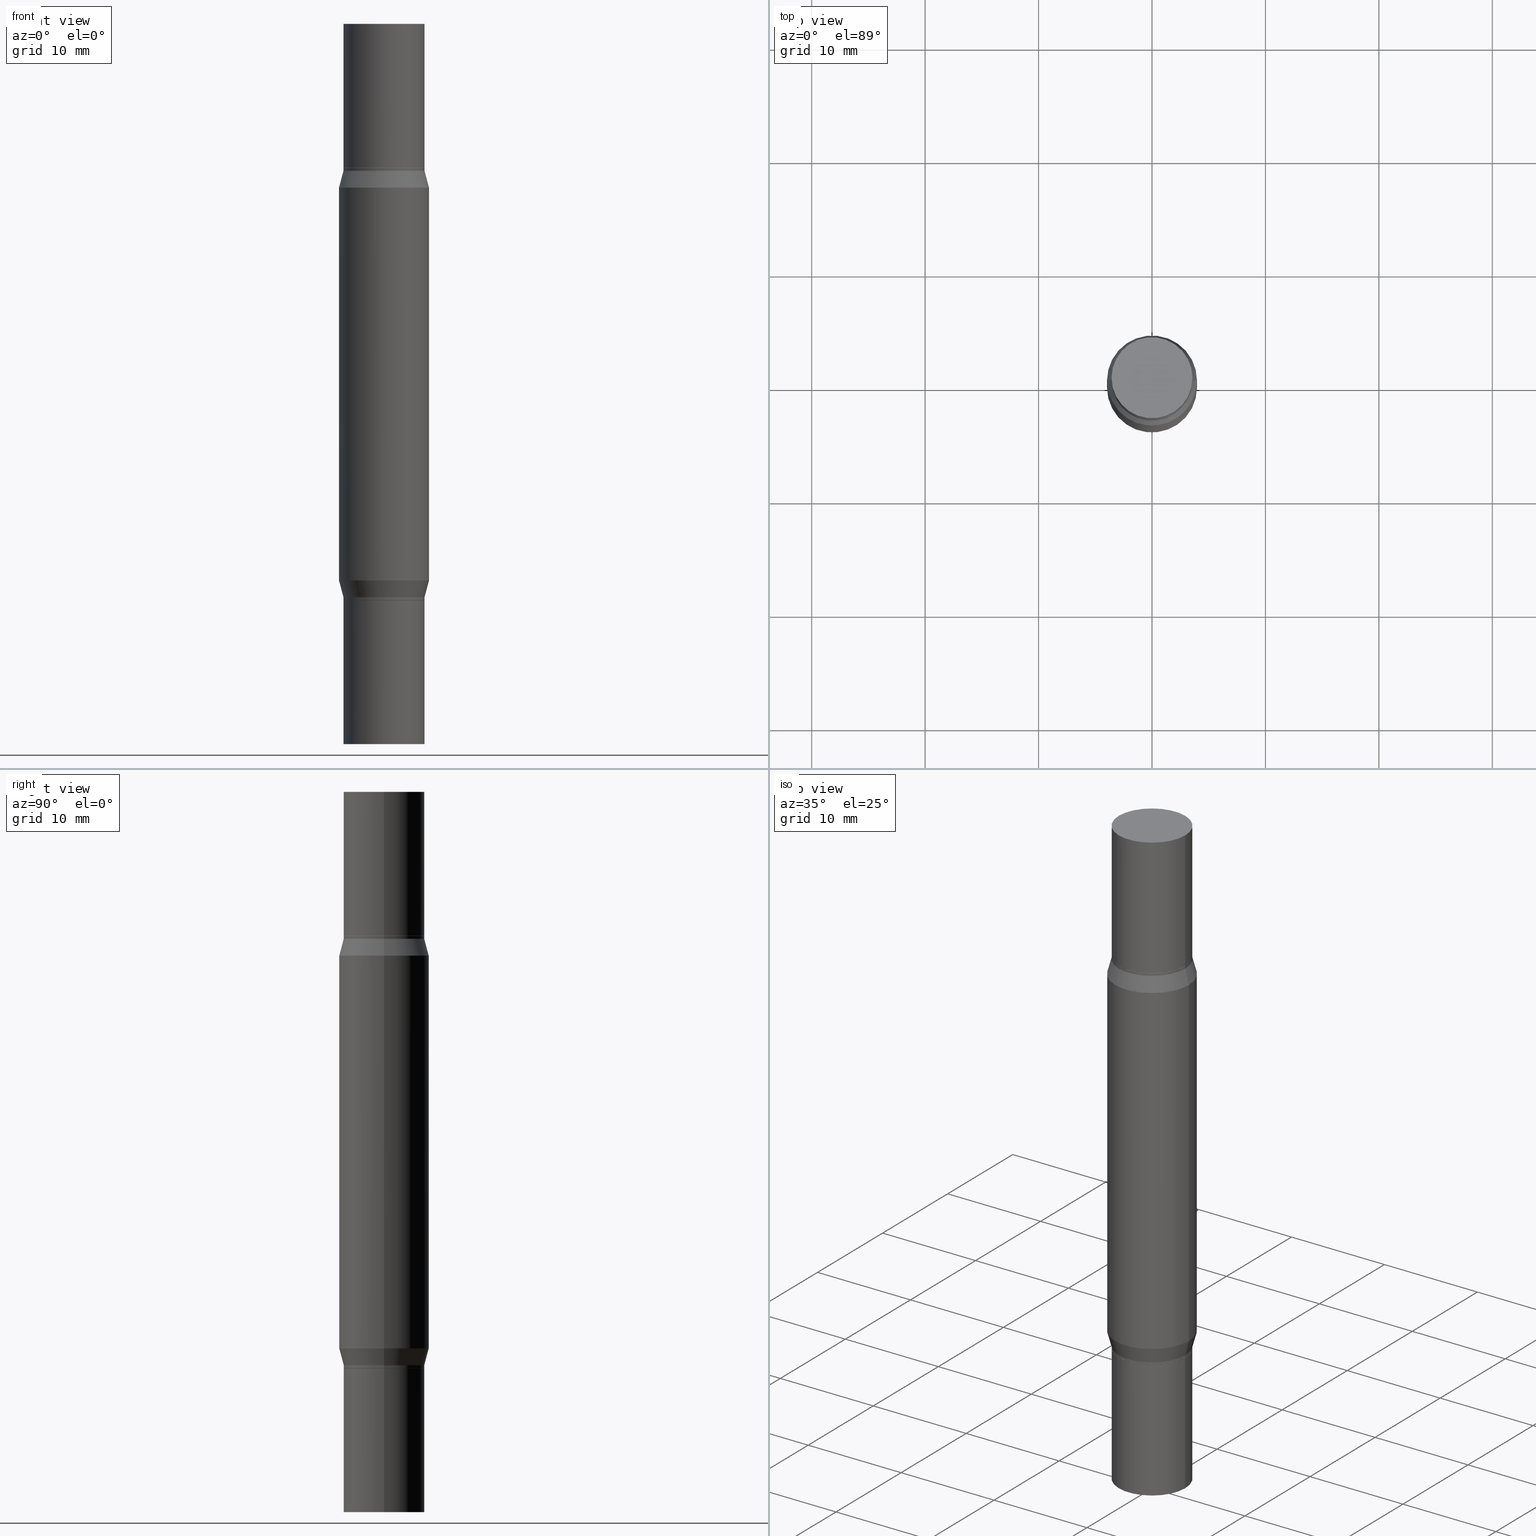
[diagram: canonical four-view strip — front | top / right | iso, engineering-drawing reading convention]
A machine part, canonical four-view strip (front | top / right | iso — engineering-drawing reading convention). The complete STEP part file that produces these views, byte-faithful:
ISO-10303-21;
HEADER;
FILE_DESCRIPTION (( 'STEP AP203' ),
    '1' );
FILE_NAME ('31431.STEP',
    '2024-03-04T16:00:09',
    ( '' ),
    ( '' ),
    'SwSTEP 2.0',
    'SolidWorks 2023',
    '' );
FILE_SCHEMA (( 'CONFIG_CONTROL_DESIGN' ));
ENDSEC;

DATA;
#1 = CIRCLE ( 'NONE', #220, 0.1401000000000000023 ) ;
#2 = LOCAL_TIME ( 11, 0, 9.000000000000000000, #543 ) ;
#3 = ORIENTED_EDGE ( 'NONE', *, *, #282, .T. ) ;
#4 = APPROVAL_STATUS ( 'not_yet_approved' ) ;
#5 = PERSON_AND_ORGANIZATION ( #474, #245 ) ;
#6 = EDGE_CURVE ( 'NONE', #268, #35, #712, .T. ) ;
#7 = VERTEX_POINT ( 'NONE', #321 ) ;
#8 = PERSON_AND_ORGANIZATION_ROLE ( 'design_owner' ) ;
#9 = ORIENTED_EDGE ( 'NONE', *, *, #209, .F. ) ;
#10 = FACE_OUTER_BOUND ( 'NONE', #957, .T. ) ;
#11 = CC_DESIGN_PERSON_AND_ORGANIZATION_ASSIGNMENT ( #93, #8, ( #86 ) ) ;
#12 = AXIS2_PLACEMENT_3D ( 'NONE', #889, #280, #752 ) ;
#13 = CARTESIAN_POINT ( 'NONE',  ( 4.723651417821850369E-29, -1.984360349766479521E-15, -0.5684065951384525972 ) ) ;
#14 = DIRECTION ( 'NONE',  ( 1.000000000000000000, -6.982962677686265133E-15, 0.000000000000000000 ) ) ;
#15 = DIRECTION ( 'NONE',  ( -2.445468806185136597E-29, -3.491805094961124077E-15, -1.000000000000000000 ) ) ;
#16 = CARTESIAN_POINT ( 'NONE',  ( 0.000000000000000000, -8.729108042255335103E-15, -2.499999999999999556 ) ) ;
#17 = EDGE_CURVE ( 'NONE', #342, #190, #250, .T. ) ;
#18 = DIRECTION ( 'NONE',  ( 1.000000000000000000, -6.982962677686270655E-15, 0.000000000000000000 ) ) ;
#19 = DIRECTION ( 'NONE',  ( 1.000000000000000000, -6.982962677686263555E-15, 0.000000000000000000 ) ) ;
#20 = AXIS2_PLACEMENT_3D ( 'NONE', #774, #110, #921 ) ;
#21 = CIRCLE ( 'NONE', #724, 0.1401000000000000023 ) ;
#22 = CONICAL_SURFACE ( 'NONE', #40, 0.1401000000000000023, 0.7853981633974653764 ) ;
#23 = DIRECTION ( 'NONE',  ( -1.000000000000000000, 6.982962677686265922E-15, -4.876176775795935793E-29 ) ) ;
#24 = PLANE ( 'NONE',  #631 ) ;
#25 = FACE_OUTER_BOUND ( 'NONE', #912, .T. ) ;
#26 = VERTEX_POINT ( 'NONE', #399 ) ;
#27 = FACE_OUTER_BOUND ( 'NONE', #348, .T. ) ;
#28 = ORIENTED_EDGE ( 'NONE', *, *, #6, .T. ) ;
#29 = ADVANCED_FACE ( 'NONE', ( #172 ), #94, .T. ) ;
#30 = DIRECTION ( 'NONE',  ( 1.000000000000000000, -6.982962677686266711E-15, 0.000000000000000000 ) ) ;
#31 = ORIENTED_EDGE ( 'NONE', *, *, #119, .T. ) ;
#32 = DIRECTION ( 'NONE',  ( -2.445468806185136597E-29, -3.491805094961124077E-15, -1.000000000000000000 ) ) ;
#33 = DIRECTION ( 'NONE',  ( 1.000000000000000000, -6.982962677686266711E-15, 0.000000000000000000 ) ) ;
#34 = ORIENTED_EDGE ( 'NONE', *, *, #372, .T. ) ;
#35 = VERTEX_POINT ( 'NONE', #98 ) ;
#36 = VECTOR ( 'NONE', #927, 39.37007874015748143 ) ;
#37 = CARTESIAN_POINT ( 'NONE',  ( 0.1401000000000000023, -2.723810923476931864E-15, -0.4999999999999993339 ) ) ;
#38 = LINE ( 'NONE', #658, #894 ) ;
#39 = CIRCLE ( 'NONE', #12, 0.1405999999999999195 ) ;
#40 = AXIS2_PLACEMENT_3D ( 'NONE', #706, #784, #557 ) ;
#41 = CARTESIAN_POINT ( 'NONE',  ( -0.1405999999999998917, -7.764522023768658166E-15, -2.499999999999999556 ) ) ;
#42 = ORIENTED_EDGE ( 'NONE', *, *, #333, .F. ) ;
#43 = ADVANCED_FACE ( 'NONE', ( #391 ), #479, .T. ) ;
#44 = ORIENTED_EDGE ( 'NONE', *, *, #223, .F. ) ;
#45 = CARTESIAN_POINT ( 'NONE',  ( 4.890937612370273754E-29, -1.745497852333085568E-15, -0.4999999999999993339 ) ) ;
#46 = EDGE_LOOP ( 'NONE', ( #687, #199, #362, #893 ) ) ;
#47 = EDGE_CURVE ( 'NONE', #190, #787, #979, .T. ) ;
#48 = EDGE_LOOP ( 'NONE', ( #530, #963, #205, #263 ) ) ;
#49 = CARTESIAN_POINT ( 'NONE',  ( 4.890937612370273754E-29, -6.982962677686291954E-15, -2.000000000000000444 ) ) ;
#50 = DIRECTION ( 'NONE',  ( -2.445468806185136877E-29, 3.491481338843145188E-15, 1.000000000000000000 ) ) ;
#51 = DIRECTION ( 'NONE',  ( 1.000000000000000000, -6.982962677686269077E-15, 0.000000000000000000 ) ) ;
#52 = ORIENTED_EDGE ( 'NONE', *, *, #127, .T. ) ;
#53 = ORIENTED_EDGE ( 'NONE', *, *, #951, .T. ) ;
#54 = DIRECTION ( 'NONE',  ( 1.000000000000000000, -6.982962677686266711E-15, 0.000000000000000000 ) ) ;
#55 = DIRECTION ( 'NONE',  ( 2.445468806185136597E-29, 3.491805094961124077E-15, 1.000000000000000000 ) ) ;
#56 = CIRCLE ( 'NONE', #754, 0.1405999999999998917 ) ;
#57 = ADVANCED_FACE ( 'NONE', ( #707 ), #701, .T. ) ;
#58 = AXIS2_PLACEMENT_3D ( 'NONE', #825, #453, #700 ) ;
#59 = DIRECTION ( 'NONE',  ( 2.445468806185136597E-29, 3.491805094961124077E-15, 1.000000000000000000 ) ) ;
#60 = AXIS2_PLACEMENT_3D ( 'NONE', #486, #331, #254 ) ;
#61 = APPROVAL_DATE_TIME ( #528, #440 ) ;
#62 = FACE_OUTER_BOUND ( 'NONE', #714, .T. ) ;
#63 = EDGE_CURVE ( 'NONE', #607, #732, #274, .T. ) ;
#64 = FACE_OUTER_BOUND ( 'NONE', #840, .T. ) ;
#65 = ORIENTED_EDGE ( 'NONE', *, *, #339, .F. ) ;
#66 = DIRECTION ( 'NONE',  ( -2.445468806185136877E-29, -3.491805094961123683E-15, -1.000000000000000000 ) ) ;
#67 = DIRECTION ( 'NONE',  ( -2.445468806185136597E-29, -3.491805094961124077E-15, -1.000000000000000000 ) ) ;
#68 = ORIENTED_EDGE ( 'NONE', *, *, #284, .T. ) ;
#69 = CALENDAR_DATE ( 2024, 4, 3 ) ;
#70 = APPROVAL_STATUS ( 'not_yet_approved' ) ;
#71 = CYLINDRICAL_SURFACE ( 'NONE', #141, 0.1406000000000000028 ) ;
#72 = VERTEX_POINT ( 'NONE', #629 ) ;
#73 = CIRCLE ( 'NONE', #198, 0.1401000000000000023 ) ;
#74 = VECTOR ( 'NONE', #405, 39.37007874015748143 ) ;
#75 = AXIS2_PLACEMENT_3D ( 'NONE', #515, #291, #286 ) ;
#76 = LOCAL_TIME ( 11, 0, 9.000000000000000000, #235 ) ;
#77 = EDGE_CURVE ( 'NONE', #473, #169, #647, .T. ) ;
#78 = MECHANICAL_CONTEXT ( 'NONE', #234, 'mechanical' ) ;
#79 = ADVANCED_FACE ( 'NONE', ( #633 ), #549, .T. ) ;
#80 = EDGE_LOOP ( 'NONE', ( #675, #485, #934, #150 ) ) ;
#81 = PLANE ( 'NONE',  #696 ) ;
#82 = ADVANCED_FACE ( 'NONE', ( #642 ), #24, .F. ) ;
#83 = DIRECTION ( 'NONE',  ( 1.000000000000000000, 0.000000000000000000, 0.000000000000000000 ) ) ;
#84 = ORIENTED_EDGE ( 'NONE', *, *, #312, .T. ) ;
#85 = FACE_OUTER_BOUND ( 'NONE', #890, .T. ) ;
#86 = PRODUCT ( '31431', '31431', '', ( #78 ) ) ;
#87 =( LENGTH_UNIT ( ) NAMED_UNIT ( * ) SI_UNIT ( $, .METRE. ) );
#88 = ORIENTED_EDGE ( 'NONE', *, *, #938, .F. ) ;
#89 = CARTESIAN_POINT ( 'NONE',  ( 0.1562500000000000000, -9.820195960643813487E-15, -2.499999999999999556 ) ) ;
#90 = AXIS2_PLACEMENT_3D ( 'NONE', #16, #779, #18 ) ;
#91 = CONICAL_SURFACE ( 'NONE', #708, 0.1405999999999998917, 0.2617993877991502960 ) ;
#92 =( GEOMETRIC_REPRESENTATION_CONTEXT ( 3 ) GLOBAL_UNCERTAINTY_ASSIGNED_CONTEXT ( ( #575 ) ) GLOBAL_UNIT_ASSIGNED_CONTEXT ( ( #608, #462, #471 ) ) REPRESENTATION_CONTEXT ( 'NONE', 'WORKASPACE' ) );
#93 = PERSON_AND_ORGANIZATION ( #474, #245 ) ;
#94 = CYLINDRICAL_SURFACE ( 'NONE', #922, 0.1562500000000000000 ) ;
#95 = ADVANCED_FACE ( 'NONE', ( #932 ), #411, .T. ) ;
#96 = LINE ( 'NONE', #397, #744 ) ;
#97 = CARTESIAN_POINT ( 'NONE',  ( 4.889714877967180953E-29, -6.981216937016870451E-15, -1.999500000000000277 ) ) ;
#98 = CARTESIAN_POINT ( 'NONE',  ( 0.1562500000000000000, -3.075448268154960667E-15, -0.5684065951384525972 ) ) ;
#99 = CARTESIAN_POINT ( 'NONE',  ( 4.890937612370273754E-29, -1.745497852333085568E-15, -0.4999999999999993339 ) ) ;
#100 = PERSON_AND_ORGANIZATION ( #474, #245 ) ;
#101 = EDGE_CURVE ( 'NONE', #111, #259, #533, .T. ) ;
#102 = CARTESIAN_POINT ( 'NONE',  ( 4.889714877967180953E-29, -1.747243754880567132E-15, -0.5004999999999991678 ) ) ;
#103 = CARTESIAN_POINT ( 'NONE',  ( 4.890937612370273754E-29, -1.745497852333085568E-15, -0.4999999999999993339 ) ) ;
#104 = DIRECTION ( 'NONE',  ( 1.000000000000000000, -6.982962677686266711E-15, 0.000000000000000000 ) ) ;
#105 = CIRCLE ( 'NONE', #228, 0.1562500000000000000 ) ;
#106 = CIRCLE ( 'NONE', #180, 0.1405999999999999195 ) ;
#107 = CIRCLE ( 'NONE', #75, 0.1406000000000000028 ) ;
#108 = LOCAL_TIME ( 11, 0, 9.000000000000000000, #539 ) ;
#109 = CARTESIAN_POINT ( 'NONE',  ( 4.890937612370273754E-29, -1.745497852333085568E-15, -0.4999999999999993339 ) ) ;
#110 = DIRECTION ( 'NONE',  ( -2.445468806185136597E-29, 3.491481338843145583E-15, 1.000000000000000000 ) ) ;
#111 = VERTEX_POINT ( 'NONE', #202 ) ;
#112 = CARTESIAN_POINT ( 'NONE',  ( 4.866482924308422209E-29, -6.948047864297860305E-15, -1.989999999999999991 ) ) ;
#113 = DIRECTION ( 'NONE',  ( -2.445468806185136597E-29, -3.491805094961124077E-15, -1.000000000000000000 ) ) ;
#114 = CARTESIAN_POINT ( 'NONE',  ( 6.113672015462842613E-29, 4.046951474745467748E-19, 5.463695987328526437E-16 ) ) ;
#115 = DIRECTION ( 'NONE',  ( -0.2588190451025215721, -1.597197180879712551E-15, -0.9659258262890679791 ) ) ;
#116 = DIRECTION ( 'NONE',  ( -2.445468806185136877E-29, -3.491805094961123683E-15, -1.000000000000000000 ) ) ;
#117 = LINE ( 'NONE', #41, #634 ) ;
#118 = ORIENTED_EDGE ( 'NONE', *, *, #562, .T. ) ;
#119 = EDGE_CURVE ( 'NONE', #120, #644, #857, .T. ) ;
#120 = VERTEX_POINT ( 'NONE', #435 ) ;
#121 = AXIS2_PLACEMENT_3D ( 'NONE', #416, #734, #947 ) ;
#122 = DIRECTION ( 'NONE',  ( 1.000000000000000000, -6.982962677686263555E-15, 0.000000000000000000 ) ) ;
#123 = CARTESIAN_POINT ( 'NONE',  ( 4.723651417821850369E-29, -6.744122327306583531E-15, -1.931593404861546848 ) ) ;
#124 = AXIS2_PLACEMENT_3D ( 'NONE', #854, #567, #252 ) ;
#125 = CARTESIAN_POINT ( 'NONE',  ( 4.890937612370273754E-29, -1.745497852333085568E-15, -0.4999999999999993339 ) ) ;
#126 = ORIENTED_EDGE ( 'NONE', *, *, #531, .T. ) ;
#127 = EDGE_CURVE ( 'NONE', #473, #607, #278, .T. ) ;
#128 = ORIENTED_EDGE ( 'NONE', *, *, #562, .F. ) ;
#129 = CYLINDRICAL_SURFACE ( 'NONE', #619, 0.1405999999999998917 ) ;
#130 = DIRECTION ( 'NONE',  ( 1.000000000000000000, -6.982962677686266711E-15, 0.000000000000000000 ) ) ;
#131 = CARTESIAN_POINT ( 'NONE',  ( 0.000000000000000000, -8.729108042255335103E-15, -2.499999999999999556 ) ) ;
#132 = ORIENTED_EDGE ( 'NONE', *, *, #899, .T. ) ;
#133 = ORIENTED_EDGE ( 'NONE', *, *, #460, .F. ) ;
#134 = DIRECTION ( 'NONE',  ( 2.445468806185136597E-29, 3.491805094961124077E-15, 1.000000000000000000 ) ) ;
#135 = CARTESIAN_POINT ( 'NONE',  ( 4.866482924308422209E-29, -6.948047864297860305E-15, -1.989999999999999991 ) ) ;
#136 = DIRECTION ( 'NONE',  ( 2.445468806185136597E-29, 3.491805094961124077E-15, 1.000000000000000000 ) ) ;
#137 = ORIENTED_EDGE ( 'NONE', *, *, #211, .F. ) ;
#138 = EDGE_CURVE ( 'NONE', #576, #381, #885, .T. ) ;
#139 = DIRECTION ( 'NONE',  ( 1.000000000000000000, -6.982962677686266711E-15, 4.876176775795935793E-29 ) ) ;
#140 = AXIS2_PLACEMENT_3D ( 'NONE', #421, #790, #646 ) ;
#141 = AXIS2_PLACEMENT_3D ( 'NONE', #131, #735, #441 ) ;
#142 = CYLINDRICAL_SURFACE ( 'NONE', #313, 0.1562500000000000000 ) ;
#143 = ORIENTED_EDGE ( 'NONE', *, *, #127, .F. ) ;
#144 = AXIS2_PLACEMENT_3D ( 'NONE', #952, #270, #884 ) ;
#145 = DIRECTION ( 'NONE',  ( 2.445468806185136597E-29, 3.491805094961124077E-15, 1.000000000000000000 ) ) ;
#146 = LINE ( 'NONE', #977, #879 ) ;
#147 = EDGE_LOOP ( 'NONE', ( #969, #349, #881, #761 ) ) ;
#148 = SHAPE_DEFINITION_REPRESENTATION ( #839, #875 ) ;
#149 = DIRECTION ( 'NONE',  ( 1.000000000000000000, -6.982962677686265922E-15, 2.260776888683160832E-33 ) ) ;
#150 = ORIENTED_EDGE ( 'NONE', *, *, #248, .F. ) ;
#151 = ADVANCED_FACE ( 'NONE', ( #502 ), #207, .F. ) ;
#152 = EDGE_CURVE ( 'NONE', #268, #7, #56, .T. ) ;
#153 = ORIENTED_EDGE ( 'NONE', *, *, #851, .F. ) ;
#154 = AXIS2_PLACEMENT_3D ( 'NONE', #866, #716, #130 ) ;
#155 = CIRCLE ( 'NONE', #551, 0.1405999999999998917 ) ;
#156 = ADVANCED_FACE ( 'NONE', ( #785 ), #322, .T. ) ;
#157 = VECTOR ( 'NONE', #206, 39.37007874015748143 ) ;
#158 = ORIENTED_EDGE ( 'NONE', *, *, #693, .T. ) ;
#159 = DIRECTION ( 'NONE',  ( -2.445468806185136597E-29, 3.491481338843145583E-15, 1.000000000000000000 ) ) ;
#160 = ADVANCED_FACE ( 'NONE', ( #795 ), #767, .T. ) ;
#161 = EDGE_LOOP ( 'NONE', ( #555, #197, #536, #222 ) ) ;
#162 = CARTESIAN_POINT ( 'NONE',  ( 0.1562500000000000000, -7.835210245695063494E-15, -1.931593404861546848 ) ) ;
#163 = EDGE_CURVE ( 'NONE', #821, #259, #496, .T. ) ;
#164 = VERTEX_POINT ( 'NONE', #859 ) ;
#165 = CC_DESIGN_PERSON_AND_ORGANIZATION_ASSIGNMENT ( #456, #623, ( #522 ) ) ;
#166 = AXIS2_PLACEMENT_3D ( 'NONE', #886, #136, #51 ) ;
#167 = PERSON_AND_ORGANIZATION ( #474, #245 ) ;
#168 = DIRECTION ( 'NONE',  ( 1.000000000000000000, -6.982962677686266711E-15, 0.000000000000000000 ) ) ;
#169 = VERTEX_POINT ( 'NONE', #357 ) ;
#170 = DIRECTION ( 'NONE',  ( -2.445468806185136597E-29, 3.491481338843145583E-15, 1.000000000000000000 ) ) ;
#171 = CARTESIAN_POINT ( 'NONE',  ( -0.1405999999999998917, 9.990230864787000920E-16, -6.916022736898392134E-30 ) ) ;
#172 = FACE_OUTER_BOUND ( 'NONE', #303, .T. ) ;
#173 = CARTESIAN_POINT ( 'NONE',  ( 4.723651417821850369E-29, -1.984360349766479521E-15, -0.5684065951384525972 ) ) ;
#174 = EDGE_CURVE ( 'NONE', #682, #837, #73, .T. ) ;
#175 = MANIFOLD_SOLID_BREP ( 'Body-Move/Copy2[1]', #777 ) ;
#176 = PLANE ( 'NONE',  #768 ) ;
#177 = CARTESIAN_POINT ( 'NONE',  ( 0.000000000000000000, -8.729108042255335103E-15, -2.499999999999999556 ) ) ;
#178 = DIRECTION ( 'NONE',  ( 2.445468806185136597E-29, 3.491805094961124077E-15, 1.000000000000000000 ) ) ;
#179 = AXIS2_PLACEMENT_3D ( 'NONE', #351, #635, #630 ) ;
#180 = AXIS2_PLACEMENT_3D ( 'NONE', #97, #540, #903 ) ;
#181 = VECTOR ( 'NONE', #891, 39.37007874015748143 ) ;
#182 = SECURITY_CLASSIFICATION ( '', '', #612 ) ;
#183 = CARTESIAN_POINT ( 'NONE',  ( 0.1401000000000000023, -7.961275748830138842E-15, -2.000000000000000444 ) ) ;
#184 = CYLINDRICAL_SURFACE ( 'NONE', #140, 0.1405999999999998917 ) ;
#185 = LINE ( 'NONE', #337, #797 ) ;
#186 = ORIENTED_EDGE ( 'NONE', *, *, #577, .F. ) ;
#187 = CARTESIAN_POINT ( 'NONE',  ( 0.1406000000000000028, -2.727302404815774476E-15, -0.4999999999999993339 ) ) ;
#188 = LINE ( 'NONE', #491, #340 ) ;
#189 = DIRECTION ( 'NONE',  ( 1.000000000000000000, -6.982962677686266711E-15, 4.876176775795936353E-29 ) ) ;
#190 = VERTEX_POINT ( 'NONE', #672 ) ;
#191 = ORIENTED_EDGE ( 'NONE', *, *, #776, .T. ) ;
#192 = MANIFOLD_SOLID_BREP ( 'Mirror1[3]', #743 ) ;
#193 = ADVANCED_FACE ( 'NONE', ( #287 ), #184, .T. ) ;
#194 = DIRECTION ( 'NONE',  ( 2.445468806185136597E-29, 3.491805094961124077E-15, 1.000000000000000000 ) ) ;
#195 = DIRECTION ( 'NONE',  ( 1.000000000000000000, -6.982962677686269077E-15, 0.000000000000000000 ) ) ;
#196 = CARTESIAN_POINT ( 'NONE',  ( 4.866482924308422209E-29, -1.780415903282698911E-15, -0.5099999999999994538 ) ) ;
#197 = ORIENTED_EDGE ( 'NONE', *, *, #514, .T. ) ;
#198 = AXIS2_PLACEMENT_3D ( 'NONE', #336, #960, #266 ) ;
#199 = ORIENTED_EDGE ( 'NONE', *, *, #738, .T. ) ;
#200 = AXIS2_PLACEMENT_3D ( 'NONE', #125, #806, #302 ) ;
#201 = CARTESIAN_POINT ( 'NONE',  ( 4.889714877967180953E-29, -6.981216937016870451E-15, -1.999500000000000277 ) ) ;
#202 = CARTESIAN_POINT ( 'NONE',  ( -0.1405999999999998917, -5.965609314178665286E-15, -1.989999999999999991 ) ) ;
#203 = VECTOR ( 'NONE', #66, 39.37007874015748143 ) ;
#204 = ORIENTED_EDGE ( 'NONE', *, *, #673, .T. ) ;
#205 = ORIENTED_EDGE ( 'NONE', *, *, #824, .T. ) ;
#206 = DIRECTION ( 'NONE',  ( 0.2588190451025215721, -5.180148453816008779E-15, -0.9659258262890679791 ) ) ;
#207 = PLANE ( 'NONE',  #816 ) ;
#208 = EDGE_LOOP ( 'NONE', ( #219, #737, #906, #753 ) ) ;
#209 = EDGE_CURVE ( 'NONE', #381, #342, #518, .T. ) ;
#210 = CALENDAR_DATE ( 2024, 4, 3 ) ;
#211 = EDGE_CURVE ( 'NONE', #224, #731, #188, .T. ) ;
#212 = LINE ( 'NONE', #813, #181 ) ;
#213 = CARTESIAN_POINT ( 'NONE',  ( 0.000000000000000000, -8.729108042255335103E-15, -2.499999999999999556 ) ) ;
#214 = VERTEX_POINT ( 'NONE', #720 ) ;
#215 = LINE ( 'NONE', #520, #553 ) ;
#216 = VECTOR ( 'NONE', #967, 39.37007874015748143 ) ;
#217 = AXIS2_PLACEMENT_3D ( 'NONE', #762, #930, #247 ) ;
#218 = DIRECTION ( 'NONE',  ( -2.445468806185136597E-29, -3.491805094961124077E-15, -1.000000000000000000 ) ) ;
#219 = ORIENTED_EDGE ( 'NONE', *, *, #514, .F. ) ;
#220 = AXIS2_PLACEMENT_3D ( 'NONE', #45, #415, #645 ) ;
#221 = PLANE ( 'NONE',  #144 ) ;
#222 = ORIENTED_EDGE ( 'NONE', *, *, #550, .F. ) ;
#223 = EDGE_CURVE ( 'NONE', #494, #644, #38, .T. ) ;
#224 = VERTEX_POINT ( 'NONE', #653 ) ;
#225 = APPROVAL_STATUS ( 'not_yet_approved' ) ;
#226 = FACE_OUTER_BOUND ( 'NONE', #147, .T. ) ;
#227 = ORIENTED_EDGE ( 'NONE', *, *, #6, .F. ) ;
#228 = AXIS2_PLACEMENT_3D ( 'NONE', #385, #758, #766 ) ;
#229 = CONICAL_SURFACE ( 'NONE', #482, 0.1401000000000000023, 0.7853981633974653764 ) ;
#230 = CIRCLE ( 'NONE', #844, 0.1405999999999999195 ) ;
#231 = PERSON_AND_ORGANIZATION_ROLE ( 'classification_officer' ) ;
#232 = EDGE_LOOP ( 'NONE', ( #690, #614, #574, #508 ) ) ;
#233 = CARTESIAN_POINT ( 'NONE',  ( 0.1405999999999998917, -7.929852416780548622E-15, -1.989999999999999991 ) ) ;
#234 = APPLICATION_CONTEXT ( 'configuration controlled 3d designs of mechanical parts and assemblies' ) ;
#235 = COORDINATED_UNIVERSAL_TIME_OFFSET ( 5, 0, .BEHIND. ) ;
#236 = PRODUCT_RELATED_PRODUCT_CATEGORY ( 'detail', '', ( #86 ) ) ;
#237 = DIRECTION ( 'NONE',  ( 2.445468806185136597E-29, 3.491805094961124077E-15, 1.000000000000000000 ) ) ;
#238 = CALENDAR_DATE ( 2024, 4, 3 ) ;
#239 = CARTESIAN_POINT ( 'NONE',  ( 4.890937612370273754E-29, -6.982962677686291954E-15, -2.000000000000000444 ) ) ;
#240 = CLOSED_SHELL ( 'NONE', ( #594, #659, #57, #750, #320, #151, #561, #251, #156, #638 ) ) ;
#241 = CARTESIAN_POINT ( 'NONE',  ( -0.1406000000000000028, 9.990230864787008809E-16, -6.916022736898397739E-30 ) ) ;
#242 = VECTOR ( 'NONE', #50, 39.37007874015748143 ) ;
#243 = AXIS2_PLACEMENT_3D ( 'NONE', #665, #600, #593 ) ;
#244 = CONICAL_SURFACE ( 'NONE', #924, 0.1405999999999998917, 0.2617993877991502960 ) ;
#245 = ORGANIZATION ( 'UNSPECIFIED', 'UNSPECIFIED', '' ) ;
#246 = ORIENTED_EDGE ( 'NONE', *, *, #808, .T. ) ;
#247 = DIRECTION ( 'NONE',  ( 1.000000000000000000, -6.982962677686265922E-15, 2.260776888683160832E-33 ) ) ;
#248 = EDGE_CURVE ( 'NONE', #164, #253, #455, .T. ) ;
#249 = DIRECTION ( 'NONE',  ( 2.445468806185136597E-29, 3.491805094961124077E-15, 1.000000000000000000 ) ) ;
#250 = LINE ( 'NONE', #332, #36 ) ;
#251 = ADVANCED_FACE ( 'NONE', ( #429 ), #729, .T. ) ;
#252 = DIRECTION ( 'NONE',  ( 1.000000000000000000, -6.982962677686262766E-15, 0.000000000000000000 ) ) ;
#253 = VERTEX_POINT ( 'NONE', #162 ) ;
#254 = DIRECTION ( 'NONE',  ( 1.000000000000000000, -6.982962677686269077E-15, 0.000000000000000000 ) ) ;
#255 = CARTESIAN_POINT ( 'NONE',  ( 0.000000000000000000, -8.729108042255335103E-15, -2.499999999999999556 ) ) ;
#256 = DIRECTION ( 'NONE',  ( 2.445468806185136597E-29, 3.491805094961124077E-15, 1.000000000000000000 ) ) ;
#257 = AXIS2_PLACEMENT_3D ( 'NONE', #849, #476, #703 ) ;
#258 = AXIS2_PLACEMENT_3D ( 'NONE', #430, #775, #786 ) ;
#259 = VERTEX_POINT ( 'NONE', #233 ) ;
#260 = VECTOR ( 'NONE', #434, 39.37007874015748143 ) ;
#261 = DIRECTION ( 'NONE',  ( -2.445468806185136877E-29, -3.491805094961123683E-15, -1.000000000000000000 ) ) ;
#262 = CYLINDRICAL_SURFACE ( 'NONE', #378, 0.1406000000000000028 ) ;
#263 = ORIENTED_EDGE ( 'NONE', *, *, #355, .F. ) ;
#264 = EDGE_CURVE ( 'NONE', #169, #732, #390, .T. ) ;
#265 = ORIENTED_EDGE ( 'NONE', *, *, #547, .T. ) ;
#266 = DIRECTION ( 'NONE',  ( 1.000000000000000000, -6.982962677686269077E-15, 0.000000000000000000 ) ) ;
#267 = FACE_OUTER_BOUND ( 'NONE', #425, .T. ) ;
#268 = VERTEX_POINT ( 'NONE', #537 ) ;
#269 = ORIENTED_EDGE ( 'NONE', *, *, #597, .F. ) ;
#270 = DIRECTION ( 'NONE',  ( -2.438088387897960049E-29, 3.491481338843145188E-15, 1.000000000000000000 ) ) ;
#271 = DIRECTION ( 'NONE',  ( 1.000000000000000000, -6.982962677686266711E-15, 0.000000000000000000 ) ) ;
#272 = DIRECTION ( 'NONE',  ( 2.445468806185136597E-29, 3.491805094961124077E-15, 1.000000000000000000 ) ) ;
#273 = EDGE_LOOP ( 'NONE', ( #423, #815 ) ) ;
#274 = CIRCLE ( 'NONE', #796, 0.1406000000000000028 ) ;
#275 = EDGE_LOOP ( 'NONE', ( #853, #742 ) ) ;
#276 = CIRCLE ( 'NONE', #200, 0.1406000000000000028 ) ;
#277 = DIRECTION ( 'NONE',  ( -2.445468806185136877E-29, -3.491805094961123683E-15, -1.000000000000000000 ) ) ;
#278 = LINE ( 'NONE', #439, #216 ) ;
#279 = APPROVAL_PERSON_ORGANIZATION ( #100, #440, #283 ) ;
#280 = DIRECTION ( 'NONE',  ( 2.445468806185136597E-29, 3.491805094961124077E-15, 1.000000000000000000 ) ) ;
#281 = ORIENTED_EDGE ( 'NONE', *, *, #970, .F. ) ;
#282 = EDGE_CURVE ( 'NONE', #746, #670, #721, .T. ) ;
#283 = APPROVAL_ROLE ( '' ) ;
#284 = EDGE_CURVE ( 'NONE', #259, #111, #295, .T. ) ;
#285 = ORIENTED_EDGE ( 'NONE', *, *, #17, .F. ) ;
#286 = DIRECTION ( 'NONE',  ( 1.000000000000000000, -6.982962677686265133E-15, 0.000000000000000000 ) ) ;
#287 = FACE_OUTER_BOUND ( 'NONE', #541, .T. ) ;
#288 = CARTESIAN_POINT ( 'NONE',  ( 0.1406000000000000028, -7.964767230168980271E-15, -2.000000000000000444 ) ) ;
#289 = ORIENTED_EDGE ( 'NONE', *, *, #899, .F. ) ;
#290 = APPLICATION_CONTEXT ( 'configuration controlled 3d designs of mechanical parts and assemblies' ) ;
#291 = DIRECTION ( 'NONE',  ( 2.445468806185136597E-29, 3.491805094961124077E-15, 1.000000000000000000 ) ) ;
#292 = DIRECTION ( 'NONE',  ( 1.000000000000000000, -6.982962677686262766E-15, 0.000000000000000000 ) ) ;
#293 = VERTEX_POINT ( 'NONE', #316 ) ;
#294 = CARTESIAN_POINT ( 'NONE',  ( -0.1562500000000000000, -9.124075376146796868E-16, -0.5684065951384525972 ) ) ;
#295 = CIRCLE ( 'NONE', #828, 0.1405999999999998917 ) ;
#296 = CIRCLE ( 'NONE', #243, 0.1401000000000000023 ) ;
#297 = DIRECTION ( 'NONE',  ( -2.445468806185136877E-29, -3.491805094961123683E-15, -1.000000000000000000 ) ) ;
#298 = ORIENTED_EDGE ( 'NONE', *, *, #974, .F. ) ;
#299 = CIRCLE ( 'NONE', #382, 0.1406000000000000028 ) ;
#300 = EDGE_CURVE ( 'NONE', #812, #35, #616, .T. ) ;
#301 = EDGE_CURVE ( 'NONE', #253, #164, #105, .T. ) ;
#302 = DIRECTION ( 'NONE',  ( 1.000000000000000000, -6.982962677686265133E-15, 0.000000000000000000 ) ) ;
#303 = EDGE_LOOP ( 'NONE', ( #831, #465, #869, #65 ) ) ;
#304 = PERSON_AND_ORGANIZATION_ROLE ( 'creator' ) ;
#305 = EDGE_LOOP ( 'NONE', ( #354, #956, #846, #384 ) ) ;
#306 = EDGE_CURVE ( 'NONE', #732, #607, #361, .T. ) ;
#307 = DIRECTION ( 'NONE',  ( 0.000000000000000000, 3.491643216902134435E-15, 1.000000000000000000 ) ) ;
#308 = APPLICATION_PROTOCOL_DEFINITION ( 'international standard', 'config_control_design', 1994, #290 ) ;
#309 = CARTESIAN_POINT ( 'NONE',  ( -0.1405999999999999195, -7.826577363938889141E-16, -0.5004999999999991678 ) ) ;
#310 = EDGE_LOOP ( 'NONE', ( #289, #461, #191, #662 ) ) ;
#311 = AXIS2_PLACEMENT_3D ( 'NONE', #13, #237, #396 ) ;
#312 = EDGE_CURVE ( 'NONE', #35, #812, #909, .T. ) ;
#313 = AXIS2_PLACEMENT_3D ( 'NONE', #359, #67, #292 ) ;
#314 = LOCAL_TIME ( 11, 0, 9.000000000000000000, #822 ) ;
#315 = ORIENTED_EDGE ( 'NONE', *, *, #101, .F. ) ;
#316 = CARTESIAN_POINT ( 'NONE',  ( 0.1401000000000000023, -2.723810923476931864E-15, -0.4999999999999993339 ) ) ;
#317 = DATE_AND_TIME ( #238, #76 ) ;
#318 = DIRECTION ( 'NONE',  ( -2.445468806185136597E-29, 3.491481338843145583E-15, 1.000000000000000000 ) ) ;
#319 = DIRECTION ( 'NONE',  ( 1.000000000000000000, -6.982962677686265133E-15, 0.000000000000000000 ) ) ;
#320 = ADVANCED_FACE ( 'NONE', ( #770 ), #81, .F. ) ;
#321 = CARTESIAN_POINT ( 'NONE',  ( -0.1405999999999998917, -7.992438105949555922E-16, -0.5099999999999994538 ) ) ;
#322 = CONICAL_SURFACE ( 'NONE', #154, 0.1405999999999998917, 0.2617993877991502960 ) ;
#323 = DIRECTION ( 'NONE',  ( 2.445468806185136597E-29, 3.491805094961124077E-15, 1.000000000000000000 ) ) ;
#324 = CONICAL_SURFACE ( 'NONE', #469, 0.1405999999999998917, 0.2617993877991502960 ) ;
#325 = ADVANCED_FACE ( 'NONE', ( #10 ), #704, .F. ) ;
#326 = DIRECTION ( 'NONE',  ( -2.445468806185136877E-29, 3.491481338843145188E-15, 1.000000000000000000 ) ) ;
#327 = CARTESIAN_POINT ( 'NONE',  ( 6.155389339687910369E-29, -8.668961764414927934E-15, -2.500000000000000000 ) ) ;
#328 = ADVANCED_FACE ( 'NONE', ( #85 ), #694, .F. ) ;
#329 = CYLINDRICAL_SURFACE ( 'NONE', #124, 0.1562500000000000000 ) ;
#330 = EDGE_LOOP ( 'NONE', ( #437, #887, #723, #563 ) ) ;
#331 = DIRECTION ( 'NONE',  ( -2.445468806185136597E-29, 3.491481338843145583E-15, 1.000000000000000000 ) ) ;
#332 = CARTESIAN_POINT ( 'NONE',  ( -0.1405999999999998917, -8.158298847960224676E-16, -0.5099999999999994538 ) ) ;
#333 = EDGE_CURVE ( 'NONE', #787, #586, #542, .T. ) ;
#334 = ORIENTED_EDGE ( 'NONE', *, *, #163, .T. ) ;
#335 = CARTESIAN_POINT ( 'NONE',  ( -0.1405999999999998917, -8.158298847960224676E-16, -0.5099999999999994538 ) ) ;
#336 = CARTESIAN_POINT ( 'NONE',  ( 4.890937612370273754E-29, -1.745497852333085568E-15, -0.4999999999999993339 ) ) ;
#337 = CARTESIAN_POINT ( 'NONE',  ( -0.1562500000000000000, -7.657155230103533296E-15, -2.499999999999999556 ) ) ;
#338 = ORIENTED_EDGE ( 'NONE', *, *, #264, .F. ) ;
#339 = EDGE_CURVE ( 'NONE', #35, #253, #698, .T. ) ;
#340 = VECTOR ( 'NONE', #116, 39.37007874015748143 ) ;
#341 = CIRCLE ( 'NONE', #843, 0.1562500000000000000 ) ;
#342 = VERTEX_POINT ( 'NONE', #545 ) ;
#343 = VECTOR ( 'NONE', #326, 39.37007874015748143 ) ;
#344 = APPROVAL_PERSON_ORGANIZATION ( #5, #538, #627 ) ;
#345 = DIRECTION ( 'NONE',  ( 0.7071067811865595631, -2.468850131082382884E-15, 0.7071067811865354713 ) ) ;
#346 = DIRECTION ( 'NONE',  ( -0.7071067811865595631, 2.382025595312359119E-15, -0.7071067811865354713 ) ) ;
#347 = DIRECTION ( 'NONE',  ( 1.000000000000000000, -6.982962677686266711E-15, 0.000000000000000000 ) ) ;
#348 = EDGE_LOOP ( 'NONE', ( #353, #132, #901, #679 ) ) ;
#349 = ORIENTED_EDGE ( 'NONE', *, *, #505, .F. ) ;
#350 = CARTESIAN_POINT ( 'NONE',  ( -0.1405999999999998917, -5.949024777819160607E-15, -1.989999999999999991 ) ) ;
#351 = CARTESIAN_POINT ( 'NONE',  ( 0.000000000000000000, -8.729108042255335103E-15, -2.499999999999999556 ) ) ;
#352 = DIRECTION ( 'NONE',  ( -2.445468806185136877E-29, -3.491805094961123683E-15, -1.000000000000000000 ) ) ;
#353 = ORIENTED_EDGE ( 'NONE', *, *, #938, .T. ) ;
#354 = ORIENTED_EDGE ( 'NONE', *, *, #808, .F. ) ;
#355 = EDGE_CURVE ( 'NONE', #649, #746, #96, .T. ) ;
#356 = LINE ( 'NONE', #595, #260 ) ;
#357 = CARTESIAN_POINT ( 'NONE',  ( -0.1406000000000000028, -6.856809925918377173E-15, -2.500000000000000000 ) ) ;
#358 = ADVANCED_FACE ( 'NONE', ( #267 ), #91, .T. ) ;
#359 = CARTESIAN_POINT ( 'NONE',  ( 0.000000000000000000, -8.729108042255335103E-15, -2.499999999999999556 ) ) ;
#360 = ORIENTED_EDGE ( 'NONE', *, *, #606, .F. ) ;
#361 = CIRCLE ( 'NONE', #379, 0.1406000000000000028 ) ;
#362 = ORIENTED_EDGE ( 'NONE', *, *, #284, .F. ) ;
#363 = AXIS2_PLACEMENT_3D ( 'NONE', #943, #872, #189 ) ;
#364 = CARTESIAN_POINT ( 'NONE',  ( -0.1406000000000000028, -7.764522023768658166E-15, -2.499999999999999556 ) ) ;
#365 = CARTESIAN_POINT ( 'NONE',  ( 0.1405999999999998917, -9.710912594738023419E-15, -2.499999999999999556 ) ) ;
#366 = AXIS2_PLACEMENT_3D ( 'NONE', #109, #32, #478 ) ;
#367 = DIRECTION ( 'NONE',  ( 2.445468806185136597E-29, 3.491805094961124077E-15, 1.000000000000000000 ) ) ;
#368 = ORIENTED_EDGE ( 'NONE', *, *, #386, .F. ) ;
#369 = CARTESIAN_POINT ( 'NONE',  ( 4.890937612370273754E-29, -6.982962677686291954E-15, -2.000000000000000444 ) ) ;
#370 = DIRECTION ( 'NONE',  ( 1.000000000000000000, -6.982962677686266711E-15, 0.000000000000000000 ) ) ;
#371 = EDGE_LOOP ( 'NONE', ( #204, #446 ) ) ;
#372 = EDGE_CURVE ( 'NONE', #190, #939, #185, .T. ) ;
#373 = CARTESIAN_POINT ( 'NONE',  ( 4.890937612370273754E-29, -1.745497852333085568E-15, -0.4999999999999993339 ) ) ;
#374 = LINE ( 'NONE', #511, #817 ) ;
#375 = EDGE_LOOP ( 'NONE', ( #128, #807, #570, #442 ) ) ;
#376 = CC_DESIGN_DATE_AND_TIME_ASSIGNMENT ( #395, #459, ( #522 ) ) ;
#377 = PERSON_AND_ORGANIZATION ( #474, #245 ) ;
#378 = AXIS2_PLACEMENT_3D ( 'NONE', #643, #648, #937 ) ;
#379 = AXIS2_PLACEMENT_3D ( 'NONE', #907, #170, #319 ) ;
#380 = CARTESIAN_POINT ( 'NONE',  ( 4.890937612370273754E-29, -1.745497852333085568E-15, -0.4999999999999993339 ) ) ;
#381 = VERTEX_POINT ( 'NONE', #573 ) ;
#382 = AXIS2_PLACEMENT_3D ( 'NONE', #711, #194, #495 ) ;
#383 = CALENDAR_DATE ( 2024, 4, 3 ) ;
#384 = ORIENTED_EDGE ( 'NONE', *, *, #851, .T. ) ;
#385 = CARTESIAN_POINT ( 'NONE',  ( 4.723651417821850369E-29, -6.744122327306583531E-15, -1.931593404861546848 ) ) ;
#386 = EDGE_CURVE ( 'NONE', #682, #524, #412, .T. ) ;
#387 = CARTESIAN_POINT ( 'NONE',  ( 0.1406000000000000028, -9.813998573352146072E-16, 5.463695987328526437E-16 ) ) ;
#388 = ORIENTED_EDGE ( 'NONE', *, *, #824, .F. ) ;
#389 = EDGE_CURVE ( 'NONE', #7, #268, #424, .T. ) ;
#390 = LINE ( 'NONE', #241, #705 ) ;
#391 = FACE_OUTER_BOUND ( 'NONE', #305, .T. ) ;
#392 = VECTOR ( 'NONE', #261, 39.37007874015748143 ) ;
#393 = CIRCLE ( 'NONE', #258, 0.1562500000000000000 ) ;
#394 = DIRECTION ( 'NONE',  ( -2.445468806185136877E-29, -3.491805094961123683E-15, -1.000000000000000000 ) ) ;
#395 = DATE_AND_TIME ( #830, #2 ) ;
#396 = DIRECTION ( 'NONE',  ( 1.000000000000000000, -6.982962677686265133E-15, 0.000000000000000000 ) ) ;
#397 = CARTESIAN_POINT ( 'NONE',  ( 0.1406000000000000028, -9.710912594738023419E-15, -2.499999999999999556 ) ) ;
#398 = CARTESIAN_POINT ( 'NONE',  ( -0.1406000000000000028, 9.203943989387194407E-17, -0.4999999999999993339 ) ) ;
#399 = CARTESIAN_POINT ( 'NONE',  ( -0.1406000000000000028, 9.203943989387182081E-17, 5.463695987328557991E-16 ) ) ;
#400 = CARTESIAN_POINT ( 'NONE',  ( 4.866482924308422209E-29, -6.948047864297860305E-15, -1.989999999999999991 ) ) ;
#401 = EDGE_CURVE ( 'NONE', #342, #381, #155, .T. ) ;
#402 = LINE ( 'NONE', #171, #343 ) ;
#403 = DIRECTION ( 'NONE',  ( -2.445468806185136597E-29, -3.491805094961124077E-15, -1.000000000000000000 ) ) ;
#404 = AXIS2_PLACEMENT_3D ( 'NONE', #173, #552, #847 ) ;
#405 = DIRECTION ( 'NONE',  ( -0.7071067811865595631, 2.382025595312359119E-15, -0.7071067811865354713 ) ) ;
#406 = VECTOR ( 'NONE', #394, 39.37007874015748143 ) ;
#407 = CIRCLE ( 'NONE', #669, 0.1401000000000000023 ) ;
#408 = AXIS2_PLACEMENT_3D ( 'NONE', #759, #763, #83 ) ;
#409 = ADVANCED_FACE ( 'NONE', ( #933 ), #585, .F. ) ;
#410 = DIRECTION ( 'NONE',  ( 1.000000000000000000, -6.982962677686265922E-15, 2.260776888683160832E-33 ) ) ;
#411 = CYLINDRICAL_SURFACE ( 'NONE', #566, 0.1405999999999998917 ) ;
#412 = LINE ( 'NONE', #660, #74 ) ;
#413 = ORIENTED_EDGE ( 'NONE', *, *, #958, .T. ) ;
#414 = EDGE_CURVE ( 'NONE', #939, #586, #393, .T. ) ;
#415 = DIRECTION ( 'NONE',  ( 2.445468806185136597E-29, 3.491805094961124077E-15, 1.000000000000000000 ) ) ;
#416 = CARTESIAN_POINT ( 'NONE',  ( 4.889714877967180953E-29, -1.747243754880567132E-15, -0.5004999999999991678 ) ) ;
#417 = DIRECTION ( 'NONE',  ( 1.000000000000000000, -6.982962677686266711E-15, 0.000000000000000000 ) ) ;
#418 = CC_DESIGN_DATE_AND_TIME_ASSIGNMENT ( #833, #914, ( #182 ) ) ;
#419 = ORIENTED_EDGE ( 'NONE', *, *, #611, .T. ) ;
#420 = CARTESIAN_POINT ( 'NONE',  ( 6.155389339687910369E-29, 6.014627784041091528E-17, 5.463695987328526437E-16 ) ) ;
#421 = CARTESIAN_POINT ( 'NONE',  ( 0.000000000000000000, 0.000000000000000000, 0.000000000000000000 ) ) ;
#422 = DIRECTION ( 'NONE',  ( 1.000000000000000000, -6.982962677686263555E-15, 0.000000000000000000 ) ) ;
#423 = ORIENTED_EDGE ( 'NONE', *, *, #77, .F. ) ;
#424 = CIRCLE ( 'NONE', #618, 0.1405999999999998917 ) ;
#425 = EDGE_LOOP ( 'NONE', ( #68, #582, #792, #360 ) ) ;
#426 = VECTOR ( 'NONE', #663, 39.37007874015748143 ) ;
#427 = CC_DESIGN_APPROVAL ( #440, ( #182 ) ) ;
#428 = LINE ( 'NONE', #364, #589 ) ;
#429 = FACE_OUTER_BOUND ( 'NONE', #865, .T. ) ;
#430 = CARTESIAN_POINT ( 'NONE',  ( 3.056836007731420185E-29, -4.364351673553931682E-15, -1.249999999999999778 ) ) ;
#431 = ORIENTED_EDGE ( 'NONE', *, *, #389, .F. ) ;
#432 = ADVANCED_FACE ( 'NONE', ( #25 ), #262, .T. ) ;
#433 = EDGE_LOOP ( 'NONE', ( #88, #269 ) ) ;
#434 = DIRECTION ( 'NONE',  ( -0.7071067811865595631, 7.493145998870398336E-15, 0.7071067811865354713 ) ) ;
#435 = CARTESIAN_POINT ( 'NONE',  ( 0.1405999999999999195, -2.729048307363254463E-15, -0.5004999999999991678 ) ) ;
#436 = ORIENTED_EDGE ( 'NONE', *, *, #460, .T. ) ;
#437 = ORIENTED_EDGE ( 'NONE', *, *, #819, .F. ) ;
#438 = CARTESIAN_POINT ( 'NONE',  ( 0.1401000000000000023, -2.723810923476931864E-15, -0.4999999999999993339 ) ) ;
#439 = CARTESIAN_POINT ( 'NONE',  ( 0.1406000000000000028, -9.818045524826891058E-16, 6.855904546769086274E-30 ) ) ;
#440 = APPROVAL ( #4, 'UNSPECIFIED' ) ;
#441 = DIRECTION ( 'NONE',  ( 1.000000000000000000, -6.982962677686265133E-15, 0.000000000000000000 ) ) ;
#442 = ORIENTED_EDGE ( 'NONE', *, *, #693, .F. ) ;
#443 = CARTESIAN_POINT ( 'NONE',  ( -0.1406000000000000028, 9.203943989387182081E-17, 5.463695987328557991E-16 ) ) ;
#444 = AXIS2_PLACEMENT_3D ( 'NONE', #534, #835, #905 ) ;
#445 = LINE ( 'NONE', #811, #755 ) ;
#446 = ORIENTED_EDGE ( 'NONE', *, *, #174, .T. ) ;
#447 = CARTESIAN_POINT ( 'NONE',  ( 0.000000000000000000, 0.000000000000000000, 0.000000000000000000 ) ) ;
#448 = EDGE_CURVE ( 'NONE', #826, #649, #923, .T. ) ;
#449 = FACE_OUTER_BOUND ( 'NONE', #558, .T. ) ;
#450 = ORIENTED_EDGE ( 'NONE', *, *, #505, .T. ) ;
#451 = ADVANCED_FACE ( 'NONE', ( #481 ), #329, .T. ) ;
#452 = LINE ( 'NONE', #350, #426 ) ;
#453 = DIRECTION ( 'NONE',  ( -2.445468806185136597E-29, -3.491805094961124077E-15, -1.000000000000000000 ) ) ;
#454 = ORIENTED_EDGE ( 'NONE', *, *, #611, .F. ) ;
#455 = CIRCLE ( 'NONE', #667, 0.1562500000000000000 ) ;
#456 = PERSON_AND_ORGANIZATION ( #474, #245 ) ;
#457 = EDGE_LOOP ( 'NONE', ( #133, #246, #126, #137 ) ) ;
#458 = EDGE_CURVE ( 'NONE', #169, #473, #467, .T. ) ;
#459 = DATE_TIME_ROLE ( 'creation_date' ) ;
#460 = EDGE_CURVE ( 'NONE', #26, #224, #588, .T. ) ;
#461 = ORIENTED_EDGE ( 'NONE', *, *, #597, .T. ) ;
#462 =( NAMED_UNIT ( * ) PLANE_ANGLE_UNIT ( ) SI_UNIT ( $, .RADIAN. ) );
#463 = EDGE_LOOP ( 'NONE', ( #44, #186, #158, #31 ) ) ;
#464 = DIRECTION ( 'NONE',  ( 2.445468806185136597E-29, 3.491805094961124077E-15, 1.000000000000000000 ) ) ;
#465 = ORIENTED_EDGE ( 'NONE', *, *, #819, .T. ) ;
#466 = VECTOR ( 'NONE', #772, 39.37007874015748143 ) ;
#467 = CIRCLE ( 'NONE', #519, 0.1406000000000000028 ) ;
#468 = DIRECTION ( 'NONE',  ( 2.438088387897959208E-29, 3.491805094961123683E-15, 1.000000000000000000 ) ) ;
#469 = AXIS2_PLACEMENT_3D ( 'NONE', #680, #976, #54 ) ;
#470 = LOCAL_TIME ( 11, 0, 9.000000000000000000, #699 ) ;
#471 =( NAMED_UNIT ( * ) SI_UNIT ( $, .STERADIAN. ) SOLID_ANGLE_UNIT ( ) );
#472 = DIRECTION ( 'NONE',  ( -2.445468806185136597E-29, -3.491805094961124077E-15, -1.000000000000000000 ) ) ;
#473 = VERTEX_POINT ( 'NONE', #580 ) ;
#474 = PERSON ( 'UNSPECIFIED', 'UNSPECIFIED', 'UNSPECIFIED', ('UNSPECIFIED'), ('UNSPECIFIED'), ('UNSPECIFIED') ) ;
#475 = FACE_OUTER_BOUND ( 'NONE', #232, .T. ) ;
#476 = DIRECTION ( 'NONE',  ( -2.445468806185136597E-29, -3.491805094961124077E-15, -1.000000000000000000 ) ) ;
#477 = DIRECTION ( 'NONE',  ( -1.000000000000000000, 6.982962677686265922E-15, -2.260776888683160832E-33 ) ) ;
#478 = DIRECTION ( 'NONE',  ( 1.000000000000000000, -6.982962677686269077E-15, 0.000000000000000000 ) ) ;
#479 = CYLINDRICAL_SURFACE ( 'NONE', #257, 0.1406000000000000028 ) ;
#480 = AXIS2_PLACEMENT_3D ( 'NONE', #135, #592, #740 ) ;
#481 = FACE_OUTER_BOUND ( 'NONE', #330, .T. ) ;
#482 = AXIS2_PLACEMENT_3D ( 'NONE', #380, #503, #523 ) ;
#483 = AXIS2_PLACEMENT_3D ( 'NONE', #940, #870, #23 ) ;
#484 = ADVANCED_FACE ( 'NONE', ( #722 ), #717, .T. ) ;
#485 = ORIENTED_EDGE ( 'NONE', *, *, #101, .T. ) ;
#486 = CARTESIAN_POINT ( 'NONE',  ( 4.890937612370273754E-29, -6.982962677686291954E-15, -2.000000000000000444 ) ) ;
#487 = DIRECTION ( 'NONE',  ( 1.000000000000000000, -6.982962677686266711E-15, 0.000000000000000000 ) ) ;
#488 = DIRECTION ( 'NONE',  ( 1.000000000000000000, -6.982962677686272233E-15, 0.000000000000000000 ) ) ;
#489 = ORIENTED_EDGE ( 'NONE', *, *, #63, .F. ) ;
#490 = CARTESIAN_POINT ( 'NONE',  ( 0.1406000000000000028, -2.727302404815774476E-15, -0.4999999999999993339 ) ) ;
#491 = CARTESIAN_POINT ( 'NONE',  ( 0.1406000000000000028, -9.710912594738023419E-15, -2.499999999999999556 ) ) ;
#492 = CARTESIAN_POINT ( 'NONE',  ( -0.1401000000000000023, -7.834999096195914786E-16, -0.4999999999999993339 ) ) ;
#493 = ORIENTED_EDGE ( 'NONE', *, *, #300, .T. ) ;
#494 = VERTEX_POINT ( 'NONE', #492 ) ;
#495 = DIRECTION ( 'NONE',  ( 1.000000000000000000, -6.982962677686266711E-15, 0.000000000000000000 ) ) ;
#496 = LINE ( 'NONE', #810, #242 ) ;
#497 = CARTESIAN_POINT ( 'NONE',  ( 4.723651417821850369E-29, -1.984360349766479521E-15, -0.5684065951384525972 ) ) ;
#498 = ORIENTED_EDGE ( 'NONE', *, *, #773, .T. ) ;
#499 = EDGE_LOOP ( 'NONE', ( #338, #610, #52, #601 ) ) ;
#500 = CIRCLE ( 'NONE', #896, 0.1406000000000000028 ) ;
#501 = DIRECTION ( 'NONE',  ( 1.000000000000000000, -6.982962677686269077E-15, 0.000000000000000000 ) ) ;
#502 = FACE_OUTER_BOUND ( 'NONE', #371, .T. ) ;
#503 = DIRECTION ( 'NONE',  ( -2.445468806185136597E-29, -3.491805094961124077E-15, -1.000000000000000000 ) ) ;
#504 = ORIENTED_EDGE ( 'NONE', *, *, #152, .F. ) ;
#505 = EDGE_CURVE ( 'NONE', #787, #190, #341, .T. ) ;
#506 = CC_DESIGN_PERSON_AND_ORGANIZATION_ASSIGNMENT ( #167, #304, ( #802 ) ) ;
#507 = MANIFOLD_SOLID_BREP ( 'Mirror1[1]', #240 ) ;
#508 = ORIENTED_EDGE ( 'NONE', *, *, #958, .F. ) ;
#509 = DIRECTION ( 'NONE',  ( -2.445468806185136597E-29, 3.491481338843145583E-15, 1.000000000000000000 ) ) ;
#510 = DIRECTION ( 'NONE',  ( -2.445468806185136597E-29, -3.491805094961124077E-15, -1.000000000000000000 ) ) ;
#511 = CARTESIAN_POINT ( 'NONE',  ( 0.1405999999999998917, -7.929852416780548622E-15, -1.989999999999999991 ) ) ;
#512 = ORIENTED_EDGE ( 'NONE', *, *, #138, .F. ) ;
#513 = MANIFOLD_SOLID_BREP ( 'Mirror1[4]', #961 ) ;
#514 = EDGE_CURVE ( 'NONE', #644, #7, #117, .T. ) ;
#515 = CARTESIAN_POINT ( 'NONE',  ( 4.890937612370273754E-29, -1.745497852333085568E-15, -0.4999999999999993339 ) ) ;
#516 = FACE_OUTER_BOUND ( 'NONE', #527, .T. ) ;
#517 = EDGE_LOOP ( 'NONE', ( #590, #504, #28, #84 ) ) ;
#518 = CIRCLE ( 'NONE', #878, 0.1405999999999998917 ) ;
#519 = AXIS2_PLACEMENT_3D ( 'NONE', #867, #782, #488 ) ;
#520 = CARTESIAN_POINT ( 'NONE',  ( -0.1406000000000000028, -7.764522023768658166E-15, -2.499999999999999556 ) ) ;
#521 = VECTOR ( 'NONE', #115, 39.37007874015748143 ) ;
#522 = PRODUCT_DEFINITION ( 'UNKNOWN', '', #802, #915 ) ;
#523 = DIRECTION ( 'NONE',  ( 1.000000000000000000, -6.982962677686269077E-15, 0.000000000000000000 ) ) ;
#524 = VERTEX_POINT ( 'NONE', #798 ) ;
#525 = DIRECTION ( 'NONE',  ( -2.445468806185136597E-29, 3.491481338843145583E-15, 1.000000000000000000 ) ) ;
#526 = CYLINDRICAL_SURFACE ( 'NONE', #58, 0.1406000000000000028 ) ;
#527 = EDGE_LOOP ( 'NONE', ( #281, #973, #950, #3 ) ) ;
#528 = DATE_AND_TIME ( #69, #314 ) ;
#529 = LENGTH_MEASURE_WITH_UNIT ( LENGTH_MEASURE( 0.02539999999999999897 ), #87 );
#530 = ORIENTED_EDGE ( 'NONE', *, *, #448, .F. ) ;
#531 = EDGE_CURVE ( 'NONE', #214, #731, #276, .T. ) ;
#532 = EDGE_CURVE ( 'NONE', #649, #826, #668, .T. ) ;
#533 = CIRCLE ( 'NONE', #480, 0.1405999999999998917 ) ;
#534 = CARTESIAN_POINT ( 'NONE',  ( 3.056836007731420185E-29, -4.364351673553931682E-15, -1.249999999999999778 ) ) ;
#535 = AXIS2_PLACEMENT_3D ( 'NONE', #751, #671, #149 ) ;
#536 = ORIENTED_EDGE ( 'NONE', *, *, #389, .T. ) ;
#537 = CARTESIAN_POINT ( 'NONE',  ( 0.1405999999999998917, -2.762220455765387228E-15, -0.5099999999999994538 ) ) ;
#538 = APPROVAL ( #225, 'UNSPECIFIED' ) ;
#539 = COORDINATED_UNIVERSAL_TIME_OFFSET ( 5, 0, .BEHIND. ) ;
#540 = DIRECTION ( 'NONE',  ( -2.445468806185136597E-29, 3.491481338843145583E-15, 1.000000000000000000 ) ) ;
#541 = EDGE_LOOP ( 'NONE', ( #727, #53, #334, #315 ) ) ;
#542 = LINE ( 'NONE', #89, #406 ) ;
#543 = COORDINATED_UNIVERSAL_TIME_OFFSET ( 5, 0, .BEHIND. ) ;
#544 = DIRECTION ( 'NONE',  ( 1.000000000000000000, -6.982962677686262766E-15, 0.000000000000000000 ) ) ;
#545 = CARTESIAN_POINT ( 'NONE',  ( -0.1405999999999998917, -7.992438105949555922E-16, -0.5099999999999994538 ) ) ;
#546 = APPROVAL_DATE_TIME ( #902, #975 ) ;
#547 = EDGE_CURVE ( 'NONE', #576, #524, #39, .T. ) ;
#548 = DIRECTION ( 'NONE',  ( 1.000000000000000000, -6.982962677686269077E-15, 0.000000000000000000 ) ) ;
#549 = CONICAL_SURFACE ( 'NONE', #602, 0.1401000000000000023, 0.7853981633974653764 ) ;
#550 = EDGE_CURVE ( 'NONE', #120, #268, #445, .T. ) ;
#551 = AXIS2_PLACEMENT_3D ( 'NONE', #862, #639, #30 ) ;
#552 = DIRECTION ( 'NONE',  ( 2.445468806185136597E-29, 3.491805094961124077E-15, 1.000000000000000000 ) ) ;
#553 = VECTOR ( 'NONE', #818, 39.37007874015748143 ) ;
#554 = DIRECTION ( 'NONE',  ( 1.000000000000000000, -6.982962677686270655E-15, 0.000000000000000000 ) ) ;
#555 = ORIENTED_EDGE ( 'NONE', *, *, #954, .F. ) ;
#556 = DIRECTION ( 'NONE',  ( 1.000000000000000000, -6.982962677686265133E-15, 0.000000000000000000 ) ) ;
#557 = DIRECTION ( 'NONE',  ( 1.000000000000000000, -6.982962677686269077E-15, 0.000000000000000000 ) ) ;
#558 = EDGE_LOOP ( 'NONE', ( #874, #34, #298, #42 ) ) ;
#559 = CARTESIAN_POINT ( 'NONE',  ( 6.113672015462842613E-29, 4.046951474745467748E-19, 5.463695987328526437E-16 ) ) ;
#560 = ADVANCED_FACE ( 'NONE', ( #516 ), #71, .T. ) ;
#561 = ADVANCED_FACE ( 'NONE', ( #64 ), #229, .T. ) ;
#562 = EDGE_CURVE ( 'NONE', #494, #293, #603, .T. ) ;
#563 = ORIENTED_EDGE ( 'NONE', *, *, #301, .T. ) ;
#564 = DIRECTION ( 'NONE',  ( -2.445468806185136597E-29, -3.491805094961124077E-15, -1.000000000000000000 ) ) ;
#565 = DIRECTION ( 'NONE',  ( 1.000000000000000000, -6.982962677686265133E-15, 0.000000000000000000 ) ) ;
#566 = AXIS2_PLACEMENT_3D ( 'NONE', #255, #113, #877 ) ;
#567 = DIRECTION ( 'NONE',  ( -2.445468806185136597E-29, -3.491805094961124077E-15, -1.000000000000000000 ) ) ;
#568 = VECTOR ( 'NONE', #917, 39.37007874015748143 ) ;
#569 = CONICAL_SURFACE ( 'NONE', #60, 0.1401000000000000023, 0.7853981633974653764 ) ;
#570 = ORIENTED_EDGE ( 'NONE', *, *, #954, .T. ) ;
#571 = CARTESIAN_POINT ( 'NONE',  ( -0.1401000000000000023, -5.984843077712281954E-15, -2.000000000000000444 ) ) ;
#572 = DIRECTION ( 'NONE',  ( 2.445468806185136597E-29, 3.491805094961124077E-15, 1.000000000000000000 ) ) ;
#573 = CARTESIAN_POINT ( 'NONE',  ( 0.1405999999999998917, -2.762220455765387228E-15, -0.5099999999999994538 ) ) ;
#574 = ORIENTED_EDGE ( 'NONE', *, *, #676, .T. ) ;
#575 = UNCERTAINTY_MEASURE_WITH_UNIT (LENGTH_MEASURE( 1.000000000000000082E-05 ), #608, 'distance_accuracy_value', 'NONE');
#576 = VERTEX_POINT ( 'NONE', #686 ) ;
#577 = EDGE_CURVE ( 'NONE', #293, #494, #21, .T. ) ;
#578 = FACE_OUTER_BOUND ( 'NONE', #945, .T. ) ;
#579 = DIRECTION ( 'NONE',  ( -2.445468806185136597E-29, 3.491481338843145583E-15, 1.000000000000000000 ) ) ;
#580 = CARTESIAN_POINT ( 'NONE',  ( 0.1406000000000000028, -9.710507899590554837E-15, -2.500000000000000000 ) ) ;
#581 = EDGE_LOOP ( 'NONE', ( #856, #803, #799, #769 ) ) ;
#582 = ORIENTED_EDGE ( 'NONE', *, *, #929, .T. ) ;
#583 = LINE ( 'NONE', #888, #157 ) ;
#584 = CARTESIAN_POINT ( 'NONE',  ( 4.890937612370273194E-29, -1.745497852333086357E-15, -0.4999999999999996114 ) ) ;
#585 = PLANE ( 'NONE',  #650 ) ;
#586 = VERTEX_POINT ( 'NONE', #741 ) ;
#587 = AXIS2_PLACEMENT_3D ( 'NONE', #805, #510, #33 ) ;
#588 = CIRCLE ( 'NONE', #780, 0.1406000000000000028 ) ;
#589 = VECTOR ( 'NONE', #277, 39.37007874015748143 ) ;
#590 = ORIENTED_EDGE ( 'NONE', *, *, #760, .F. ) ;
#591 = FACE_OUTER_BOUND ( 'NONE', #433, .T. ) ;
#592 = DIRECTION ( 'NONE',  ( -2.445468806185136597E-29, 3.491481338843145583E-15, 1.000000000000000000 ) ) ;
#593 = DIRECTION ( 'NONE',  ( 1.000000000000000000, -6.982962677686269077E-15, 0.000000000000000000 ) ) ;
#594 = ADVANCED_FACE ( 'NONE', ( #449 ), #142, .T. ) ;
#595 = CARTESIAN_POINT ( 'NONE',  ( -0.1401000000000000023, -5.987492304886391577E-15, -2.000000000000000444 ) ) ;
#596 = ORIENTED_EDGE ( 'NONE', *, *, #448, .T. ) ;
#597 = EDGE_CURVE ( 'NONE', #718, #873, #296, .T. ) ;
#598 = CC_DESIGN_PERSON_AND_ORGANIZATION_ASSIGNMENT ( #377, #231, ( #182 ) ) ;
#599 = CARTESIAN_POINT ( 'NONE',  ( -0.1562500000000000000, -7.657155230103533296E-15, -2.499999999999999556 ) ) ;
#600 = DIRECTION ( 'NONE',  ( -2.445468806185136597E-29, 3.491481338843145583E-15, 1.000000000000000000 ) ) ;
#601 = ORIENTED_EDGE ( 'NONE', *, *, #306, .F. ) ;
#602 = AXIS2_PLACEMENT_3D ( 'NONE', #103, #403, #548 ) ;
#603 = CIRCLE ( 'NONE', #166, 0.1401000000000000023 ) ;
#604 = CARTESIAN_POINT ( 'NONE',  ( 0.1405999999999999195, -7.963021489499559556E-15, -1.999500000000000277 ) ) ;
#605 = CIRCLE ( 'NONE', #942, 0.1405999999999999195 ) ;
#606 = EDGE_CURVE ( 'NONE', #259, #253, #374, .T. ) ;
#607 = VERTEX_POINT ( 'NONE', #288 ) ;
#608 =( CONVERSION_BASED_UNIT ( 'INCH', #529 ) LENGTH_UNIT ( ) NAMED_UNIT ( #683 ) );
#609 = ADVANCED_FACE ( 'NONE', ( #681 ), #892, .T. ) ;
#610 = ORIENTED_EDGE ( 'NONE', *, *, #458, .T. ) ;
#611 = EDGE_CURVE ( 'NONE', #524, #342, #146, .T. ) ;
#612 = SECURITY_CLASSIFICATION_LEVEL ( 'unclassified' ) ;
#613 = ADVANCED_FACE ( 'NONE', ( #900 ), #526, .T. ) ;
#614 = ORIENTED_EDGE ( 'NONE', *, *, #386, .T. ) ;
#615 = DIRECTION ( 'NONE',  ( 0.000000000000000000, 1.000000000000000000, -3.491643216902134435E-15 ) ) ;
#616 = CIRCLE ( 'NONE', #404, 0.1562500000000000000 ) ;
#617 = PERSON_AND_ORGANIZATION ( #474, #245 ) ;
#618 = AXIS2_PLACEMENT_3D ( 'NONE', #196, #272, #347 ) ;
#619 = AXIS2_PLACEMENT_3D ( 'NONE', #447, #525, #139 ) ;
#620 = CARTESIAN_POINT ( 'NONE',  ( 0.000000000000000000, -8.729108042255335103E-15, -2.499999999999999556 ) ) ;
#621 = EDGE_LOOP ( 'NONE', ( #949, #419, #965, #512 ) ) ;
#622 = CARTESIAN_POINT ( 'NONE',  ( 9.818045524827378180E-16, 0.1405999999999982542, -0.5000000000000001110 ) ) ;
#623 = PERSON_AND_ORGANIZATION_ROLE ( 'creator' ) ;
#624 = ORIENTED_EDGE ( 'NONE', *, *, #63, .T. ) ;
#625 = CARTESIAN_POINT ( 'NONE',  ( 0.1562500000000000000, -9.820195960643813487E-15, -2.499999999999999556 ) ) ;
#626 = EDGE_CURVE ( 'NONE', #821, #72, #106, .T. ) ;
#627 = APPROVAL_ROLE ( '' ) ;
#628 = DIRECTION ( 'NONE',  ( 1.000000000000000000, -6.982962677686262766E-15, 0.000000000000000000 ) ) ;
#629 = CARTESIAN_POINT ( 'NONE',  ( -0.1405999999999999195, -5.982193850538170753E-15, -1.999500000000000277 ) ) ;
#630 = DIRECTION ( 'NONE',  ( 1.000000000000000000, -6.982962677686270655E-15, 0.000000000000000000 ) ) ;
#631 = AXIS2_PLACEMENT_3D ( 'NONE', #327, #637, #936 ) ;
#632 = CARTESIAN_POINT ( 'NONE',  ( -0.1401000000000000023, -7.834999096195914786E-16, -0.4999999999999993339 ) ) ;
#633 = FACE_OUTER_BOUND ( 'NONE', #375, .T. ) ;
#634 = VECTOR ( 'NONE', #948, 39.37007874015748143 ) ;
#635 = DIRECTION ( 'NONE',  ( -2.445468806185136597E-29, -3.491805094961124077E-15, -1.000000000000000000 ) ) ;
#636 = LINE ( 'NONE', #335, #521 ) ;
#637 = DIRECTION ( 'NONE',  ( -2.438088387897960049E-29, 3.491481338843145188E-15, 1.000000000000000000 ) ) ;
#638 = ADVANCED_FACE ( 'NONE', ( #226 ), #845, .T. ) ;
#639 = DIRECTION ( 'NONE',  ( 2.445468806185136597E-29, 3.491805094961124077E-15, 1.000000000000000000 ) ) ;
#640 = ORIENTED_EDGE ( 'NONE', *, *, #531, .F. ) ;
#641 = FACE_OUTER_BOUND ( 'NONE', #161, .T. ) ;
#642 = FACE_OUTER_BOUND ( 'NONE', #273, .T. ) ;
#643 = CARTESIAN_POINT ( 'NONE',  ( 0.000000000000000000, 0.000000000000000000, 0.000000000000000000 ) ) ;
#644 = VERTEX_POINT ( 'NONE', #309 ) ;
#645 = DIRECTION ( 'NONE',  ( 1.000000000000000000, -6.982962677686269077E-15, 0.000000000000000000 ) ) ;
#646 = DIRECTION ( 'NONE',  ( 1.000000000000000000, -6.982962677686266711E-15, 4.876176775795935793E-29 ) ) ;
#647 = CIRCLE ( 'NONE', #20, 0.1406000000000000028 ) ;
#648 = DIRECTION ( 'NONE',  ( -2.445468806185136597E-29, 3.491481338843145583E-15, 1.000000000000000000 ) ) ;
#649 = VERTEX_POINT ( 'NONE', #387 ) ;
#650 = AXIS2_PLACEMENT_3D ( 'NONE', #654, #880, #477 ) ;
#651 = CONICAL_SURFACE ( 'NONE', #366, 0.1401000000000000023, 0.7853981633974653764 ) ;
#652 = CARTESIAN_POINT ( 'NONE',  ( 0.1562500000000000000, -3.075448268154960667E-15, -0.5684065951384525972 ) ) ;
#653 = CARTESIAN_POINT ( 'NONE',  ( 0.1406000000000000028, -9.813998573352146072E-16, 5.463695987328526437E-16 ) ) ;
#654 = CARTESIAN_POINT ( 'NONE',  ( 9.818045524827378180E-16, 0.1405999999999982542, -0.5000000000000001110 ) ) ;
#655 = EDGE_LOOP ( 'NONE', ( #285, #9, #666, #450 ) ) ;
#656 = ORIENTED_EDGE ( 'NONE', *, *, #547, .F. ) ;
#657 = CARTESIAN_POINT ( 'NONE',  ( -0.1562500000000000000, -2.102403199508403006E-15, -1.249999999999999778 ) ) ;
#658 = CARTESIAN_POINT ( 'NONE',  ( -0.1401000000000000023, -7.843420828452938458E-16, -0.4999999999999993339 ) ) ;
#659 = ADVANCED_FACE ( 'NONE', ( #836 ), #883, .T. ) ;
#660 = CARTESIAN_POINT ( 'NONE',  ( -0.1401000000000000023, -7.843420828452938458E-16, -0.4999999999999993339 ) ) ;
#661 = ORIENTED_EDGE ( 'NONE', *, *, #306, .T. ) ;
#662 = ORIENTED_EDGE ( 'NONE', *, *, #951, .F. ) ;
#663 = DIRECTION ( 'NONE',  ( -0.2588190451025215721, 5.211531920934551831E-15, 0.9659258262890679791 ) ) ;
#664 = CARTESIAN_POINT ( 'NONE',  ( 4.866482924308422209E-29, -1.780415903282698911E-15, -0.5099999999999994538 ) ) ;
#665 = CARTESIAN_POINT ( 'NONE',  ( 4.890937612370273754E-29, -6.982962677686291954E-15, -2.000000000000000444 ) ) ;
#666 = ORIENTED_EDGE ( 'NONE', *, *, #919, .T. ) ;
#667 = AXIS2_PLACEMENT_3D ( 'NONE', #123, #579, #195 ) ;
#668 = CIRCLE ( 'NONE', #684, 0.1406000000000000028 ) ;
#669 = AXIS2_PLACEMENT_3D ( 'NONE', #369, #677, #733 ) ;
#670 = VERTEX_POINT ( 'NONE', #398 ) ;
#671 = DIRECTION ( 'NONE',  ( -2.438088387897959208E-29, -3.491805094961123683E-15, -1.000000000000000000 ) ) ;
#672 = CARTESIAN_POINT ( 'NONE',  ( -0.1562500000000000000, -9.124075376146796868E-16, -0.5684065951384525972 ) ) ;
#673 = EDGE_CURVE ( 'NONE', #837, #682, #1, .T. ) ;
#674 = DIRECTION ( 'NONE',  ( 0.2588190451025215721, 1.565188264969619995E-15, 0.9659258262890679791 ) ) ;
#675 = ORIENTED_EDGE ( 'NONE', *, *, #929, .F. ) ;
#676 = EDGE_CURVE ( 'NONE', #524, #576, #605, .T. ) ;
#677 = DIRECTION ( 'NONE',  ( -2.445468806185136597E-29, 3.491481338843145583E-15, 1.000000000000000000 ) ) ;
#678 = DIRECTION ( 'NONE',  ( -2.445468806185136877E-29, -3.491805094961123683E-15, -1.000000000000000000 ) ) ;
#679 = ORIENTED_EDGE ( 'NONE', *, *, #776, .F. ) ;
#680 = CARTESIAN_POINT ( 'NONE',  ( 4.866482924308422209E-29, -1.780415903282698911E-15, -0.5099999999999994538 ) ) ;
#681 = FACE_OUTER_BOUND ( 'NONE', #457, .T. ) ;
#682 = VERTEX_POINT ( 'NONE', #632 ) ;
#683 = DIMENSIONAL_EXPONENTS ( 1.000000000000000000, 0.000000000000000000, 0.000000000000000000, 0.000000000000000000, 0.000000000000000000, 0.000000000000000000, 0.000000000000000000 ) ;
#684 = AXIS2_PLACEMENT_3D ( 'NONE', #972, #59, #370 ) ;
#685 = CIRCLE ( 'NONE', #444, 0.1562500000000000000 ) ;
#686 = CARTESIAN_POINT ( 'NONE',  ( 0.1405999999999999195, -2.729048307363254463E-15, -0.5004999999999991678 ) ) ;
#687 = ORIENTED_EDGE ( 'NONE', *, *, #626, .T. ) ;
#688 = ADVANCED_FACE ( 'NONE', ( #641 ), #794, .T. ) ;
#689 = APPLICATION_PROTOCOL_DEFINITION ( 'international standard', 'config_control_design', 1994, #234 ) ;
#690 = ORIENTED_EDGE ( 'NONE', *, *, #174, .F. ) ;
#691 = CARTESIAN_POINT ( 'NONE',  ( 0.000000000000000000, 0.000000000000000000, -1.249999999999999778 ) ) ;
#692 = EDGE_LOOP ( 'NONE', ( #498, #436 ) ) ;
#693 = EDGE_CURVE ( 'NONE', #293, #120, #719, .T. ) ;
#694 = PLANE ( 'NONE',  #895 ) ;
#695 = CLOSED_SHELL ( 'NONE', ( #358, #850, #788, #29, #864, #688, #79, #882, #764, #95, #160, #451, #801, #193, #834, #855 ) ) ;
#696 = AXIS2_PLACEMENT_3D ( 'NONE', #691, #307, #615 ) ;
#697 = DIRECTION ( 'NONE',  ( -2.445468806185136597E-29, -3.491805094961124077E-15, -1.000000000000000000 ) ) ;
#698 = LINE ( 'NONE', #625, #568 ) ;
#699 = COORDINATED_UNIVERSAL_TIME_OFFSET ( 5, 0, .BEHIND. ) ;
#700 = DIRECTION ( 'NONE',  ( 1.000000000000000000, -6.982962677686265133E-15, 0.000000000000000000 ) ) ;
#701 = CYLINDRICAL_SURFACE ( 'NONE', #90, 0.1405999999999998917 ) ;
#702 = DIRECTION ( 'NONE',  ( -2.445468806185136877E-29, -3.491805094961123683E-15, -1.000000000000000000 ) ) ;
#703 = DIRECTION ( 'NONE',  ( 1.000000000000000000, -6.982962677686265133E-15, 0.000000000000000000 ) ) ;
#704 = PLANE ( 'NONE',  #217 ) ;
#705 = VECTOR ( 'NONE', #841, 39.37007874015748143 ) ;
#706 = CARTESIAN_POINT ( 'NONE',  ( 4.890937612370273754E-29, -1.745497852333085568E-15, -0.4999999999999993339 ) ) ;
#707 = FACE_OUTER_BOUND ( 'NONE', #621, .T. ) ;
#708 = AXIS2_PLACEMENT_3D ( 'NONE', #710, #955, #422 ) ;
#709 = AXIS2_PLACEMENT_3D ( 'NONE', #620, #15, #628 ) ;
#710 = CARTESIAN_POINT ( 'NONE',  ( 4.866482924308422209E-29, -6.948047864297860305E-15, -1.989999999999999991 ) ) ;
#711 = CARTESIAN_POINT ( 'NONE',  ( 6.113672015462842613E-29, 4.046951474745467748E-19, 5.463695987328526437E-16 ) ) ;
#712 = LINE ( 'NONE', #916, #466 ) ;
#713 = ADVANCED_FACE ( 'NONE', ( #578 ), #926, .F. ) ;
#714 = EDGE_LOOP ( 'NONE', ( #944, #118 ) ) ;
#715 = CARTESIAN_POINT ( 'NONE',  ( -0.1406000000000000028, -6.856809925918377173E-15, -2.000000000000000444 ) ) ;
#716 = DIRECTION ( 'NONE',  ( -2.445468806185136597E-29, -3.491805094961124077E-15, -1.000000000000000000 ) ) ;
#717 = CYLINDRICAL_SURFACE ( 'NONE', #363, 0.1406000000000000028 ) ;
#718 = VERTEX_POINT ( 'NONE', #571 ) ;
#719 = LINE ( 'NONE', #37, #829 ) ;
#720 = CARTESIAN_POINT ( 'NONE',  ( -0.1406000000000000028, 9.203943989387194407E-17, -0.4999999999999993339 ) ) ;
#721 = CIRCLE ( 'NONE', #908, 0.1406000000000000028 ) ;
#722 = FACE_OUTER_BOUND ( 'NONE', #499, .T. ) ;
#723 = ORIENTED_EDGE ( 'NONE', *, *, #339, .T. ) ;
#724 = AXIS2_PLACEMENT_3D ( 'NONE', #748, #367, #968 ) ;
#725 = AXIS2_PLACEMENT_3D ( 'NONE', #935, #564, #554 ) ;
#726 = APPROVAL_PERSON_ORGANIZATION ( #617, #975, #842 ) ;
#727 = ORIENTED_EDGE ( 'NONE', *, *, #738, .F. ) ;
#728 = FACE_OUTER_BOUND ( 'NONE', #80, .T. ) ;
#729 = CYLINDRICAL_SURFACE ( 'NONE', #179, 0.1405999999999998917 ) ;
#730 = DIRECTION ( 'NONE',  ( 1.000000000000000000, -6.982962677686265133E-15, 0.000000000000000000 ) ) ;
#731 = VERTEX_POINT ( 'NONE', #187 ) ;
#732 = VERTEX_POINT ( 'NONE', #715 ) ;
#733 = DIRECTION ( 'NONE',  ( 1.000000000000000000, -6.982962677686269077E-15, 0.000000000000000000 ) ) ;
#734 = DIRECTION ( 'NONE',  ( 2.445468806185136597E-29, 3.491805094961124077E-15, 1.000000000000000000 ) ) ;
#735 = DIRECTION ( 'NONE',  ( -2.445468806185136597E-29, -3.491805094961124077E-15, -1.000000000000000000 ) ) ;
#736 = EDGE_LOOP ( 'NONE', ( #431, #904, #493, #227 ) ) ;
#737 = ORIENTED_EDGE ( 'NONE', *, *, #119, .F. ) ;
#738 = EDGE_CURVE ( 'NONE', #72, #111, #402, .T. ) ;
#739 = DIRECTION ( 'NONE',  ( 1.000000000000000000, -6.982962677686265133E-15, 0.000000000000000000 ) ) ;
#740 = DIRECTION ( 'NONE',  ( 1.000000000000000000, -6.982962677686263555E-15, 0.000000000000000000 ) ) ;
#741 = CARTESIAN_POINT ( 'NONE',  ( 0.1562500000000000000, -4.265443930048683987E-15, -1.249999999999999778 ) ) ;
#742 = ORIENTED_EDGE ( 'NONE', *, *, #414, .T. ) ;
#743 = CLOSED_SHELL ( 'NONE', ( #613, #325, #560, #409 ) ) ;
#744 = VECTOR ( 'NONE', #702, 39.37007874015748143 ) ;
#745 = FACE_OUTER_BOUND ( 'NONE', #736, .T. ) ;
#746 = VERTEX_POINT ( 'NONE', #490 ) ;
#747 = LINE ( 'NONE', #599, #203 ) ;
#748 = CARTESIAN_POINT ( 'NONE',  ( 4.890937612370273754E-29, -1.745497852333085568E-15, -0.4999999999999993339 ) ) ;
#749 = ORIENTED_EDGE ( 'NONE', *, *, #532, .T. ) ;
#750 = ADVANCED_FACE ( 'NONE', ( #475 ), #651, .T. ) ;
#751 = CARTESIAN_POINT ( 'NONE',  ( 4.890937612370273194E-29, -1.745497852333086357E-15, -0.4999999999999996114 ) ) ;
#752 = DIRECTION ( 'NONE',  ( 1.000000000000000000, -6.982962677686265133E-15, 0.000000000000000000 ) ) ;
#753 = ORIENTED_EDGE ( 'NONE', *, *, #152, .T. ) ;
#754 = AXIS2_PLACEMENT_3D ( 'NONE', #664, #55, #487 ) ;
#755 = VECTOR ( 'NONE', #678, 39.37007874015748143 ) ;
#756 = PERSON_AND_ORGANIZATION ( #474, #245 ) ;
#757 = ORIENTED_EDGE ( 'NONE', *, *, #209, .T. ) ;
#758 = DIRECTION ( 'NONE',  ( -2.445468806185136597E-29, 3.491481338843145583E-15, 1.000000000000000000 ) ) ;
#759 = CARTESIAN_POINT ( 'NONE',  ( 0.000000000000000000, 0.000000000000000000, 0.000000000000000000 ) ) ;
#760 = EDGE_CURVE ( 'NONE', #7, #812, #636, .T. ) ;
#761 = ORIENTED_EDGE ( 'NONE', *, *, #414, .F. ) ;
#762 = CARTESIAN_POINT ( 'NONE',  ( 6.155389339687910369E-29, 6.014627784041091528E-17, 5.463695987328526437E-16 ) ) ;
#763 = DIRECTION ( 'NONE',  ( 0.000000000000000000, 0.000000000000000000, 1.000000000000000000 ) ) ;
#764 = ADVANCED_FACE ( 'NONE', ( #789 ), #22, .T. ) ;
#765 = EDGE_LOOP ( 'NONE', ( #827, #388 ) ) ;
#766 = DIRECTION ( 'NONE',  ( 1.000000000000000000, -6.982962677686269077E-15, 0.000000000000000000 ) ) ;
#767 = CONICAL_SURFACE ( 'NONE', #587, 0.1405999999999998917, 0.2617993877991502960 ) ;
#768 = AXIS2_PLACEMENT_3D ( 'NONE', #420, #778, #410 ) ;
#769 = ORIENTED_EDGE ( 'NONE', *, *, #919, .F. ) ;
#770 = FACE_OUTER_BOUND ( 'NONE', #275, .T. ) ;
#771 = ADVANCED_FACE ( 'NONE', ( #852 ), #176, .F. ) ;
#772 = DIRECTION ( 'NONE',  ( 0.2588190451025215721, -5.180148453816008779E-15, -0.9659258262890679791 ) ) ;
#773 = EDGE_CURVE ( 'NONE', #224, #26, #299, .T. ) ;
#774 = CARTESIAN_POINT ( 'NONE',  ( 6.113672015462842613E-29, -8.728703347107864943E-15, -2.500000000000000000 ) ) ;
#775 = DIRECTION ( 'NONE',  ( -0.000000000000000000, -3.491643216902134830E-15, -1.000000000000000000 ) ) ;
#776 = EDGE_CURVE ( 'NONE', #873, #821, #858, .T. ) ;
#777 = CLOSED_SHELL ( 'NONE', ( #432, #82, #484, #713 ) ) ;
#778 = DIRECTION ( 'NONE',  ( -2.438088387897959208E-29, -3.491805094961123683E-15, -1.000000000000000000 ) ) ;
#779 = DIRECTION ( 'NONE',  ( -2.445468806185136597E-29, -3.491805094961124077E-15, -1.000000000000000000 ) ) ;
#780 = AXIS2_PLACEMENT_3D ( 'NONE', #114, #178, #417 ) ;
#781 = CIRCLE ( 'NONE', #910, 0.1405999999999999195 ) ;
#782 = DIRECTION ( 'NONE',  ( -2.445468806185136597E-29, 3.491481338843145583E-15, 1.000000000000000000 ) ) ;
#783 = ORIENTED_EDGE ( 'NONE', *, *, #77, .T. ) ;
#784 = DIRECTION ( 'NONE',  ( -2.445468806185136597E-29, -3.491805094961124077E-15, -1.000000000000000000 ) ) ;
#785 = FACE_OUTER_BOUND ( 'NONE', #655, .T. ) ;
#786 = DIRECTION ( 'NONE',  ( 0.000000000000000000, 1.000000000000000000, -3.496765431890256920E-15 ) ) ;
#787 = VERTEX_POINT ( 'NONE', #652 ) ;
#788 = ADVANCED_FACE ( 'NONE', ( #27 ), #569, .T. ) ;
#789 = FACE_OUTER_BOUND ( 'NONE', #463, .T. ) ;
#790 = DIRECTION ( 'NONE',  ( -2.445468806185136597E-29, 3.491481338843145583E-15, 1.000000000000000000 ) ) ;
#791 = DIRECTION ( 'NONE',  ( 2.445468806185136597E-29, 3.491805094961124077E-15, 1.000000000000000000 ) ) ;
#792 = ORIENTED_EDGE ( 'NONE', *, *, #301, .F. ) ;
#793 = ORIENTED_EDGE ( 'NONE', *, *, #138, .T. ) ;
#794 = CYLINDRICAL_SURFACE ( 'NONE', #725, 0.1405999999999998917 ) ;
#795 = FACE_OUTER_BOUND ( 'NONE', #517, .T. ) ;
#796 = AXIS2_PLACEMENT_3D ( 'NONE', #239, #318, #565 ) ;
#797 = VECTOR ( 'NONE', #352, 39.37007874015748143 ) ;
#798 = CARTESIAN_POINT ( 'NONE',  ( -0.1405999999999999195, -7.826577363938889141E-16, -0.5004999999999991678 ) ) ;
#799 = ORIENTED_EDGE ( 'NONE', *, *, #47, .T. ) ;
#800 = CONICAL_SURFACE ( 'NONE', #861, 0.1401000000000000023, 0.7853981633974653764 ) ;
#801 = ADVANCED_FACE ( 'NONE', ( #728 ), #244, .T. ) ;
#802 = PRODUCT_DEFINITION_FORMATION_WITH_SPECIFIED_SOURCE ( 'ANY', '', #86, .NOT_KNOWN. ) ;
#803 = ORIENTED_EDGE ( 'NONE', *, *, #17, .T. ) ;
#804 = PLANE ( 'NONE',  #535 ) ;
#805 = CARTESIAN_POINT ( 'NONE',  ( 4.866482924308422209E-29, -1.780415903282698911E-15, -0.5099999999999994538 ) ) ;
#806 = DIRECTION ( 'NONE',  ( 2.445468806185136597E-29, 3.491805094961124077E-15, 1.000000000000000000 ) ) ;
#807 = ORIENTED_EDGE ( 'NONE', *, *, #223, .T. ) ;
#808 = EDGE_CURVE ( 'NONE', #26, #214, #428, .T. ) ;
#809 = CARTESIAN_POINT ( 'NONE',  ( 4.889714877967180953E-29, -1.747243754880567132E-15, -0.5004999999999991678 ) ) ;
#810 = CARTESIAN_POINT ( 'NONE',  ( 0.1405999999999998917, -9.818045524826883170E-16, 6.855904546769080669E-30 ) ) ;
#811 = CARTESIAN_POINT ( 'NONE',  ( 0.1405999999999998917, -9.710912594738023419E-15, -2.499999999999999556 ) ) ;
#812 = VERTEX_POINT ( 'NONE', #294 ) ;
#813 = CARTESIAN_POINT ( 'NONE',  ( 0.1401000000000000023, -2.723810923476931864E-15, -0.4999999999999993339 ) ) ;
#814 = CC_DESIGN_PERSON_AND_ORGANIZATION_ASSIGNMENT ( #756, #911, ( #802 ) ) ;
#815 = ORIENTED_EDGE ( 'NONE', *, *, #458, .F. ) ;
#816 = AXIS2_PLACEMENT_3D ( 'NONE', #584, #953, #871 ) ;
#817 = VECTOR ( 'NONE', #674, 39.37007874015748143 ) ;
#818 = DIRECTION ( 'NONE',  ( -2.445468806185136877E-29, -3.491805094961123683E-15, -1.000000000000000000 ) ) ;
#819 = EDGE_CURVE ( 'NONE', #812, #164, #747, .T. ) ;
#820 = DIRECTION ( 'NONE',  ( 1.000000000000000000, -6.982962677686265133E-15, 0.000000000000000000 ) ) ;
#821 = VERTEX_POINT ( 'NONE', #604 ) ;
#822 = COORDINATED_UNIVERSAL_TIME_OFFSET ( 5, 0, .BEHIND. ) ;
#823 = CARTESIAN_POINT ( 'NONE',  ( 0.1401000000000000023, -7.961275748830138842E-15, -2.000000000000000444 ) ) ;
#824 = EDGE_CURVE ( 'NONE', #670, #746, #107, .T. ) ;
#825 = CARTESIAN_POINT ( 'NONE',  ( 0.000000000000000000, -8.729108042255335103E-15, -2.499999999999999556 ) ) ;
#826 = VERTEX_POINT ( 'NONE', #443 ) ;
#827 = ORIENTED_EDGE ( 'NONE', *, *, #282, .F. ) ;
#828 = AXIS2_PLACEMENT_3D ( 'NONE', #400, #159, #19 ) ;
#829 = VECTOR ( 'NONE', #848, 39.37007874015748143 ) ;
#830 = CALENDAR_DATE ( 2024, 4, 3 ) ;
#831 = ORIENTED_EDGE ( 'NONE', *, *, #300, .F. ) ;
#832 = CARTESIAN_POINT ( 'NONE',  ( 4.723651417821850369E-29, -1.984360349766479521E-15, -0.5684065951384525972 ) ) ;
#833 = DATE_AND_TIME ( #210, #108 ) ;
#834 = ADVANCED_FACE ( 'NONE', ( #959 ), #800, .T. ) ;
#835 = DIRECTION ( 'NONE',  ( -0.000000000000000000, -3.491643216902134830E-15, -1.000000000000000000 ) ) ;
#836 = FACE_OUTER_BOUND ( 'NONE', #581, .T. ) ;
#837 = VERTEX_POINT ( 'NONE', #438 ) ;
#838 = MANIFOLD_SOLID_BREP ( 'Combine1', #695 ) ;
#839 = PRODUCT_DEFINITION_SHAPE ( 'NONE', 'NONE',  #522 ) ;
#840 = EDGE_LOOP ( 'NONE', ( #368, #978, #413, #265 ) ) ;
#841 = DIRECTION ( 'NONE',  ( -2.445468806185136877E-29, 3.491481338843145188E-15, 1.000000000000000000 ) ) ;
#842 = APPROVAL_ROLE ( '' ) ;
#843 = AXIS2_PLACEMENT_3D ( 'NONE', #497, #791, #730 ) ;
#844 = AXIS2_PLACEMENT_3D ( 'NONE', #201, #509, #501 ) ;
#845 = CYLINDRICAL_SURFACE ( 'NONE', #709, 0.1562500000000000000 ) ;
#846 = ORIENTED_EDGE ( 'NONE', *, *, #211, .T. ) ;
#847 = DIRECTION ( 'NONE',  ( 1.000000000000000000, -6.982962677686265133E-15, 0.000000000000000000 ) ) ;
#848 = DIRECTION ( 'NONE',  ( 0.7071067811865595631, -7.406779323393320831E-15, -0.7071067811865354713 ) ) ;
#849 = CARTESIAN_POINT ( 'NONE',  ( 0.000000000000000000, -8.729108042255335103E-15, -2.499999999999999556 ) ) ;
#850 = ADVANCED_FACE ( 'NONE', ( #898 ), #129, .T. ) ;
#851 = EDGE_CURVE ( 'NONE', #731, #214, #500, .T. ) ;
#852 = FACE_OUTER_BOUND ( 'NONE', #692, .T. ) ;
#853 = ORIENTED_EDGE ( 'NONE', *, *, #974, .T. ) ;
#854 = CARTESIAN_POINT ( 'NONE',  ( 0.000000000000000000, -8.729108042255335103E-15, -2.499999999999999556 ) ) ;
#855 = ADVANCED_FACE ( 'NONE', ( #591 ), #221, .F. ) ;
#856 = ORIENTED_EDGE ( 'NONE', *, *, #401, .F. ) ;
#857 = CIRCLE ( 'NONE', #121, 0.1405999999999999195 ) ;
#858 = LINE ( 'NONE', #183, #925 ) ;
#859 = CARTESIAN_POINT ( 'NONE',  ( -0.1562500000000000000, -3.292398861402129087E-15, -1.931593404861546848 ) ) ;
#860 = AXIS2_PLACEMENT_3D ( 'NONE', #832, #323, #14 ) ;
#861 = AXIS2_PLACEMENT_3D ( 'NONE', #49, #966, #876 ) ;
#862 = CARTESIAN_POINT ( 'NONE',  ( 4.866482924308422209E-29, -1.780415903282698911E-15, -0.5099999999999994538 ) ) ;
#863 = CC_DESIGN_SECURITY_CLASSIFICATION ( #182, ( #802 ) ) ;
#864 = ADVANCED_FACE ( 'NONE', ( #745 ), #324, .T. ) ;
#865 = EDGE_LOOP ( 'NONE', ( #454, #656, #793, #757 ) ) ;
#866 = CARTESIAN_POINT ( 'NONE',  ( 4.866482924308422209E-29, -1.780415903282698911E-15, -0.5099999999999994538 ) ) ;
#867 = CARTESIAN_POINT ( 'NONE',  ( 6.113672015462842613E-29, -8.728703347107864943E-15, -2.500000000000000000 ) ) ;
#868 = ORIENTED_EDGE ( 'NONE', *, *, #264, .T. ) ;
#869 = ORIENTED_EDGE ( 'NONE', *, *, #248, .T. ) ;
#870 = DIRECTION ( 'NONE',  ( 2.438088387897960049E-29, -3.491481338843145188E-15, -1.000000000000000000 ) ) ;
#871 = DIRECTION ( 'NONE',  ( 1.000000000000000000, -6.982962677686265922E-15, 2.260776888683160832E-33 ) ) ;
#872 = DIRECTION ( 'NONE',  ( -2.445468806185136597E-29, 3.491481338843145583E-15, 1.000000000000000000 ) ) ;
#873 = VERTEX_POINT ( 'NONE', #823 ) ;
#874 = ORIENTED_EDGE ( 'NONE', *, *, #47, .F. ) ;
#875 = ADVANCED_BREP_SHAPE_REPRESENTATION ( '31431', ( #175, #507, #192, #513, #838, #408 ), #92 ) ;
#876 = DIRECTION ( 'NONE',  ( 1.000000000000000000, -6.982962677686269077E-15, 0.000000000000000000 ) ) ;
#877 = DIRECTION ( 'NONE',  ( 1.000000000000000000, -6.982962677686270655E-15, 0.000000000000000000 ) ) ;
#878 = AXIS2_PLACEMENT_3D ( 'NONE', #941, #572, #271 ) ;
#879 = VECTOR ( 'NONE', #297, 39.37007874015748143 ) ;
#880 = DIRECTION ( 'NONE',  ( 2.438088387897959208E-29, 3.491805094961123683E-15, 1.000000000000000000 ) ) ;
#881 = ORIENTED_EDGE ( 'NONE', *, *, #333, .T. ) ;
#882 = ADVANCED_FACE ( 'NONE', ( #62 ), #804, .F. ) ;
#883 = CONICAL_SURFACE ( 'NONE', #964, 0.1405999999999998917, 0.2617993877991502960 ) ;
#884 = DIRECTION ( 'NONE',  ( 1.000000000000000000, -6.982962677686265922E-15, 4.876176775795935793E-29 ) ) ;
#885 = LINE ( 'NONE', #365, #392 ) ;
#886 = CARTESIAN_POINT ( 'NONE',  ( 4.890937612370273754E-29, -1.745497852333085568E-15, -0.4999999999999993339 ) ) ;
#887 = ORIENTED_EDGE ( 'NONE', *, *, #312, .F. ) ;
#888 = CARTESIAN_POINT ( 'NONE',  ( 0.1405999999999998917, -2.762220455765387228E-15, -0.5099999999999994538 ) ) ;
#889 = CARTESIAN_POINT ( 'NONE',  ( 4.889714877967180953E-29, -1.747243754880567132E-15, -0.5004999999999991678 ) ) ;
#890 = EDGE_LOOP ( 'NONE', ( #153, #640 ) ) ;
#891 = DIRECTION ( 'NONE',  ( 0.7071067811865595631, -7.406779323393320831E-15, -0.7071067811865354713 ) ) ;
#892 = CYLINDRICAL_SURFACE ( 'NONE', #962, 0.1406000000000000028 ) ;
#893 = ORIENTED_EDGE ( 'NONE', *, *, #163, .F. ) ;
#894 = VECTOR ( 'NONE', #346, 39.37007874015748143 ) ;
#895 = AXIS2_PLACEMENT_3D ( 'NONE', #622, #468, #913 ) ;
#896 = AXIS2_PLACEMENT_3D ( 'NONE', #373, #145, #739 ) ;
#897 = CC_DESIGN_APPROVAL ( #538, ( #522 ) ) ;
#898 = FACE_OUTER_BOUND ( 'NONE', #46, .T. ) ;
#899 = EDGE_CURVE ( 'NONE', #718, #72, #356, .T. ) ;
#900 = FACE_OUTER_BOUND ( 'NONE', #48, .T. ) ;
#901 = ORIENTED_EDGE ( 'NONE', *, *, #626, .F. ) ;
#902 = DATE_AND_TIME ( #383, #470 ) ;
#903 = DIRECTION ( 'NONE',  ( 1.000000000000000000, -6.982962677686269077E-15, 0.000000000000000000 ) ) ;
#904 = ORIENTED_EDGE ( 'NONE', *, *, #760, .T. ) ;
#905 = DIRECTION ( 'NONE',  ( 0.000000000000000000, 1.000000000000000000, -3.496765431890256920E-15 ) ) ;
#906 = ORIENTED_EDGE ( 'NONE', *, *, #550, .T. ) ;
#907 = CARTESIAN_POINT ( 'NONE',  ( 4.890937612370273754E-29, -6.982962677686291954E-15, -2.000000000000000444 ) ) ;
#908 = AXIS2_PLACEMENT_3D ( 'NONE', #99, #464, #556 ) ;
#909 = CIRCLE ( 'NONE', #860, 0.1562500000000000000 ) ;
#910 = AXIS2_PLACEMENT_3D ( 'NONE', #809, #134, #971 ) ;
#911 = PERSON_AND_ORGANIZATION_ROLE ( 'design_supplier' ) ;
#912 = EDGE_LOOP ( 'NONE', ( #783, #868, #489, #143 ) ) ;
#913 = DIRECTION ( 'NONE',  ( -1.000000000000000000, 6.982962677686265922E-15, -2.260776888683160832E-33 ) ) ;
#914 = DATE_TIME_ROLE ( 'classification_date' ) ;
#915 = DESIGN_CONTEXT ( 'detailed design', #290, 'design' ) ;
#916 = CARTESIAN_POINT ( 'NONE',  ( 0.1405999999999998917, -2.762220455765387228E-15, -0.5099999999999994538 ) ) ;
#917 = DIRECTION ( 'NONE',  ( -2.445468806185136877E-29, -3.491805094961123683E-15, -1.000000000000000000 ) ) ;
#918 = APPROVAL_DATE_TIME ( #317, #538 ) ;
#919 = EDGE_CURVE ( 'NONE', #381, #787, #583, .T. ) ;
#920 = CARTESIAN_POINT ( 'NONE',  ( 4.866482924308422209E-29, -1.780415903282698911E-15, -0.5099999999999994538 ) ) ;
#921 = DIRECTION ( 'NONE',  ( 1.000000000000000000, -6.982962677686272233E-15, 0.000000000000000000 ) ) ;
#922 = AXIS2_PLACEMENT_3D ( 'NONE', #177, #697, #544 ) ;
#923 = CIRCLE ( 'NONE', #980, 0.1406000000000000028 ) ;
#924 = AXIS2_PLACEMENT_3D ( 'NONE', #112, #946, #122 ) ;
#925 = VECTOR ( 'NONE', #345, 39.37007874015748143 ) ;
#926 = PLANE ( 'NONE',  #483 ) ;
#927 = DIRECTION ( 'NONE',  ( -0.2588190451025215721, -1.597197180879712551E-15, -0.9659258262890679791 ) ) ;
#928 = CC_DESIGN_APPROVAL ( #975, ( #802 ) ) ;
#929 = EDGE_CURVE ( 'NONE', #111, #164, #452, .T. ) ;
#930 = DIRECTION ( 'NONE',  ( -2.438088387897959208E-29, -3.491805094961123683E-15, -1.000000000000000000 ) ) ;
#931 = DIRECTION ( 'NONE',  ( 1.000000000000000000, -6.982962677686265133E-15, 0.000000000000000000 ) ) ;
#932 = FACE_OUTER_BOUND ( 'NONE', #208, .T. ) ;
#933 = FACE_OUTER_BOUND ( 'NONE', #765, .T. ) ;
#934 = ORIENTED_EDGE ( 'NONE', *, *, #606, .T. ) ;
#935 = CARTESIAN_POINT ( 'NONE',  ( 0.000000000000000000, -8.729108042255335103E-15, -2.499999999999999556 ) ) ;
#936 = DIRECTION ( 'NONE',  ( 1.000000000000000000, -6.982962677686265922E-15, 4.876176775795935793E-29 ) ) ;
#937 = DIRECTION ( 'NONE',  ( 1.000000000000000000, -6.982962677686266711E-15, 4.876176775795936353E-29 ) ) ;
#938 = EDGE_CURVE ( 'NONE', #873, #718, #407, .T. ) ;
#939 = VERTEX_POINT ( 'NONE', #657 ) ;
#940 = CARTESIAN_POINT ( 'NONE',  ( 9.818045524827378180E-16, 0.1405999999999930083, -2.000000000000000444 ) ) ;
#941 = CARTESIAN_POINT ( 'NONE',  ( 4.866482924308422209E-29, -1.780415903282698911E-15, -0.5099999999999994538 ) ) ;
#942 = AXIS2_PLACEMENT_3D ( 'NONE', #102, #249, #931 ) ;
#943 = CARTESIAN_POINT ( 'NONE',  ( 0.000000000000000000, 0.000000000000000000, 0.000000000000000000 ) ) ;
#944 = ORIENTED_EDGE ( 'NONE', *, *, #577, .T. ) ;
#945 = EDGE_LOOP ( 'NONE', ( #624, #661 ) ) ;
#946 = DIRECTION ( 'NONE',  ( -2.445468806185136597E-29, 3.491481338843145583E-15, 1.000000000000000000 ) ) ;
#947 = DIRECTION ( 'NONE',  ( 1.000000000000000000, -6.982962677686265133E-15, 0.000000000000000000 ) ) ;
#948 = DIRECTION ( 'NONE',  ( -2.445468806185136877E-29, -3.491805094961123683E-15, -1.000000000000000000 ) ) ;
#949 = ORIENTED_EDGE ( 'NONE', *, *, #676, .F. ) ;
#950 = ORIENTED_EDGE ( 'NONE', *, *, #355, .T. ) ;
#951 = EDGE_CURVE ( 'NONE', #72, #821, #230, .T. ) ;
#952 = CARTESIAN_POINT ( 'NONE',  ( 4.890937612370273194E-29, -6.982962677686291165E-15, -2.000000000000000000 ) ) ;
#953 = DIRECTION ( 'NONE',  ( -2.438088387897959208E-29, -3.491805094961123683E-15, -1.000000000000000000 ) ) ;
#954 = EDGE_CURVE ( 'NONE', #644, #120, #781, .T. ) ;
#955 = DIRECTION ( 'NONE',  ( -2.445468806185136597E-29, 3.491481338843145583E-15, 1.000000000000000000 ) ) ;
#956 = ORIENTED_EDGE ( 'NONE', *, *, #773, .F. ) ;
#957 = EDGE_LOOP ( 'NONE', ( #749, #596 ) ) ;
#958 = EDGE_CURVE ( 'NONE', #837, #576, #212, .T. ) ;
#959 = FACE_OUTER_BOUND ( 'NONE', #310, .T. ) ;
#960 = DIRECTION ( 'NONE',  ( 2.445468806185136597E-29, 3.491805094961124077E-15, 1.000000000000000000 ) ) ;
#961 = CLOSED_SHELL ( 'NONE', ( #609, #771, #43, #328 ) ) ;
#962 = AXIS2_PLACEMENT_3D ( 'NONE', #213, #218, #820 ) ;
#963 = ORIENTED_EDGE ( 'NONE', *, *, #970, .T. ) ;
#964 = AXIS2_PLACEMENT_3D ( 'NONE', #920, #472, #168 ) ;
#965 = ORIENTED_EDGE ( 'NONE', *, *, #401, .T. ) ;
#966 = DIRECTION ( 'NONE',  ( -2.445468806185136597E-29, 3.491481338843145583E-15, 1.000000000000000000 ) ) ;
#967 = DIRECTION ( 'NONE',  ( -2.445468806185136877E-29, 3.491481338843145188E-15, 1.000000000000000000 ) ) ;
#968 = DIRECTION ( 'NONE',  ( 1.000000000000000000, -6.982962677686269077E-15, 0.000000000000000000 ) ) ;
#969 = ORIENTED_EDGE ( 'NONE', *, *, #372, .F. ) ;
#970 = EDGE_CURVE ( 'NONE', #826, #670, #215, .T. ) ;
#971 = DIRECTION ( 'NONE',  ( 1.000000000000000000, -6.982962677686265133E-15, 0.000000000000000000 ) ) ;
#972 = CARTESIAN_POINT ( 'NONE',  ( 6.113672015462842613E-29, 4.046951474745467748E-19, 5.463695987328526437E-16 ) ) ;
#973 = ORIENTED_EDGE ( 'NONE', *, *, #532, .F. ) ;
#974 = EDGE_CURVE ( 'NONE', #586, #939, #685, .T. ) ;
#975 = APPROVAL ( #70, 'UNSPECIFIED' ) ;
#976 = DIRECTION ( 'NONE',  ( -2.445468806185136597E-29, -3.491805094961124077E-15, -1.000000000000000000 ) ) ;
#977 = CARTESIAN_POINT ( 'NONE',  ( -0.1405999999999998917, -7.764522023768658166E-15, -2.499999999999999556 ) ) ;
#978 = ORIENTED_EDGE ( 'NONE', *, *, #673, .F. ) ;
#979 = CIRCLE ( 'NONE', #311, 0.1562500000000000000 ) ;
#980 = AXIS2_PLACEMENT_3D ( 'NONE', #559, #256, #104 ) ;
ENDSEC;
END-ISO-10303-21;
